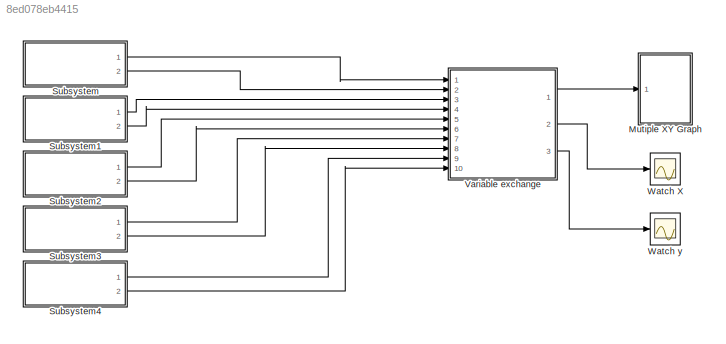
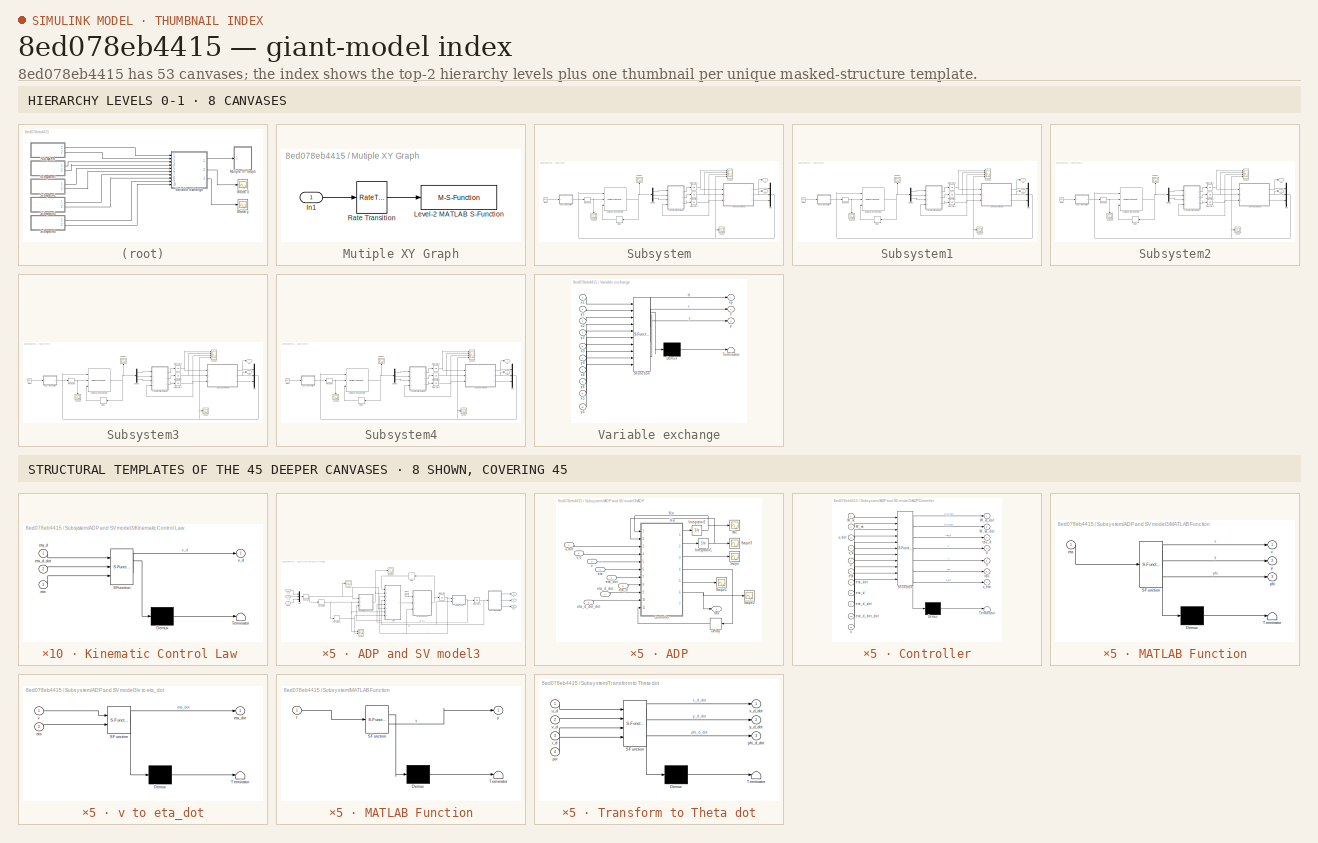
[diagram: thumbnail index - top-2 hierarchy levels (8 canvases) + 8 structural-template representatives of the remaining 45 canvases]
MODEL slx_8ed078eb4415
KIND model
CONFIG AbsTol = auto
CONFIG EnableMultiTasking = off
CONFIG FixedStep = auto
CONFIG MaxStep = auto
CONFIG MinStep = auto
CONFIG RelTol = 1e-3
CONFIG SampleTimeConstraint = Unconstrained
CONFIG SolverName = VariableStepAuto
CONFIG StartTime = 0.0
CONFIG StopTime = 100
BLOCK [SubSystem] Mutiple XY Graph
  Ports = [1]
  RequestExecContextInheritance = off
BLOCK [Inport] Mutiple XY Graph/In1
BLOCK [M-S-Function] Mutiple XY Graph/Level-2 MATLAB S-Function
  FunctionName = multiple_xy_graph
  Parameters = number_of_trajectories,axis_limits
  Ports = [1]
BLOCK [RateTransition] Mutiple XY Graph/Rate Transition
  OutPortSampleTime = sample_time
BLOCK [SubSystem] Subsystem
  Ports = [0, 2]
  RequestExecContextInheritance = off
BLOCK [SubSystem] Subsystem/ADP and SV model3
  Ports = [3, 3]
  RequestExecContextInheritance = off
BLOCK [SubSystem] Subsystem/ADP and SV model3/ADP
  Ports = [8, 1]
  RequestExecContextInheritance = off
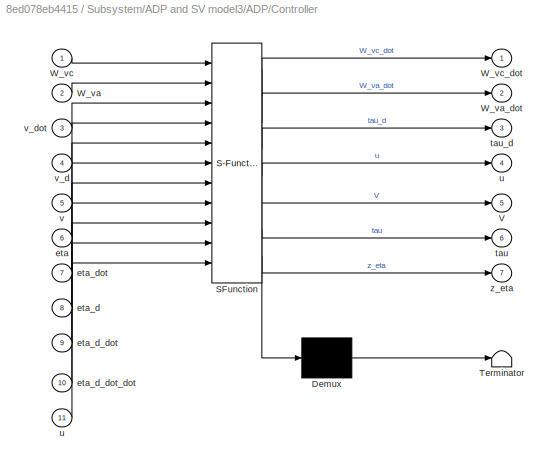
BLOCK [SubSystem] Subsystem/ADP and SV model3/ADP/Controller
  ErrorFcn = Stateflow.Translate.translate
  PermitHierarchicalResolution = ExplicitOnly
  Ports = [11, 7]
  RequestExecContextInheritance = off
  SFBlockType = MATLAB Function
  TreatAsAtomicUnit = on
BLOCK [Demux] Subsystem/ADP and SV model3/ADP/Controller/ Demux 
  Outputs = 1
  Ports = [1, 1]
BLOCK [S-Function] Subsystem/ADP and SV model3/ADP/Controller/ SFunction 
  EnableBusSupport = on
  FunctionName = sf_sfun
  PortCounts = [11 8]
  Ports = [11, 8]
  SFcnIsStateOwnerBlock = off
  SFunctionDeploymentMode = off
  Tag = Stateflow S-Function 92
BLOCK [Terminator] Subsystem/ADP and SV model3/ADP/Controller/ Terminator 
BLOCK [Outport] Subsystem/ADP and SV model3/ADP/Controller/V
  Port = 5
BLOCK [Inport] Subsystem/ADP and SV model3/ADP/Controller/W_va
  Port = 2
BLOCK [Outport] Subsystem/ADP and SV model3/ADP/Controller/W_va_dot
  Port = 2
BLOCK [Inport] Subsystem/ADP and SV model3/ADP/Controller/W_vc
BLOCK [Outport] Subsystem/ADP and SV model3/ADP/Controller/W_vc_dot
BLOCK [Inport] Subsystem/ADP and SV model3/ADP/Controller/eta
  Port = 6
BLOCK [Inport] Subsystem/ADP and SV model3/ADP/Controller/eta_d
  Port = 8
BLOCK [Inport] Subsystem/ADP and SV model3/ADP/Controller/eta_d_dot
  Port = 9
BLOCK [Inport] Subsystem/ADP and SV model3/ADP/Controller/eta_d_dot_dot
  Port = 10
BLOCK [Inport] Subsystem/ADP and SV model3/ADP/Controller/eta_dot
  Port = 7
BLOCK [Outport] Subsystem/ADP and SV model3/ADP/Controller/tau
  Port = 6
BLOCK [Outport] Subsystem/ADP and SV model3/ADP/Controller/tau_d
  Port = 3
BLOCK [Outport] Subsystem/ADP and SV model3/ADP/Controller/u
  Port = 4
BLOCK [Inport] Subsystem/ADP and SV model3/ADP/Controller/u 
  Port = 11
BLOCK [Inport] Subsystem/ADP and SV model3/ADP/Controller/v
  Port = 5
BLOCK [Inport] Subsystem/ADP and SV model3/ADP/Controller/v_d
  Port = 4
BLOCK [Inport] Subsystem/ADP and SV model3/ADP/Controller/v_dot
  Port = 3
BLOCK [Outport] Subsystem/ADP and SV model3/ADP/Controller/z_eta
  Port = 7
BLOCK [Delay] Subsystem/ADP and SV model3/ADP/Delay
  DelayLength = 1
  InitialCondition = [0;0;0]
  InputPortMap = u0
  Ports = [1, 1]
  SampleTime = 1e-2
BLOCK [Integrator] Subsystem/ADP and SV model3/ADP/Integrator1
  InitialCondition = zeros(12,1)+0.1
  Ports = [1, 1]
BLOCK [Integrator] Subsystem/ADP and SV model3/ADP/Integrator2
  InitialCondition = zeros(12,1)
  Ports = [1, 1]
BLOCK [Scope] Subsystem/ADP and SV model3/ADP/Scope
  Floating = off
  NumInputPorts = 1
  Ports = [1]
  ScopeSpecificationString = Simulink.scopes.TimeScopeBlockCfg('CurrentConfiguration', extmgr.ConfigurationSet(extmgr.Configuration('Core','General UI',true),extmgr.Configuration('Core','Source UI',true),extmgr.Configuration('Sources','WiredSimulink',true,'DataLoggingVariableName','ScopeData3'),extmgr.Configuration('Visuals','Time Domain',true,'SerializedDisplays',{struct('MinYLimReal','-1072044.93325','MaxYLimReal','602895.8...<+1488ch>  <repeated x5 — deduplicated; at blocks: Scope>
BLOCK [Scope] Subsystem/ADP and SV model3/ADP/Scope1
  Floating = off
  NumInputPorts = 1
  Ports = [1]
  ScopeSpecificationString = Simulink.scopes.TimeScopeBlockCfg('CurrentConfiguration', extmgr.ConfigurationSet(extmgr.Configuration('Core','General UI',true),extmgr.Configuration('Core','Source UI',true),extmgr.Configuration('Sources','WiredSimulink',true,'DataLoggingVariableName','ScopeData4'),extmgr.Configuration('Visuals','Time Domain',true,'SerializedDisplays',{struct('MinYLimReal','-0.03583','MaxYLimReal','0.01744','YLab...<+1396ch>  <repeated x5 — deduplicated; at blocks: Scope1>
BLOCK [Scope] Subsystem/ADP and SV model3/ADP/Scope2
  Floating = off
  NumInputPorts = 1
  Ports = [1]
  ScopeSpecificationString = Simulink.scopes.TimeScopeBlockCfg('CurrentConfiguration', extmgr.ConfigurationSet(extmgr.Configuration('Core','General UI',true),extmgr.Configuration('Core','Source UI',true),extmgr.Configuration('Sources','WiredSimulink',true,'DataLoggingVariableName','ScopeData5'),extmgr.Configuration('Visuals','Time Domain',true,'SerializedDisplays',{struct('MinYLimReal','-1072044.93471','MaxYLimReal','602895.8...<+1594ch>  <repeated x5 — deduplicated; at blocks: Scope2>
BLOCK [Scope] Subsystem/ADP and SV model3/ADP/Scope3
  Floating = off
  NumInputPorts = 1
  Ports = [1]
  ScopeSpecificationString = Simulink.scopes.TimeScopeBlockCfg('CurrentConfiguration', extmgr.ConfigurationSet(extmgr.Configuration('Core','General UI',true),extmgr.Configuration('Core','Source UI',true),extmgr.Configuration('Sources','WiredSimulink',true,'DataLoggingVariableName','ScopeData6'),extmgr.Configuration('Visuals','Time Domain',true,'SerializedDisplays',{struct('MinYLimReal','-1.83902','MaxYLimReal','0.71236','YLab...<+1539ch>  <repeated x5 — deduplicated; at blocks: Scope3>
BLOCK [Scope] Subsystem/ADP and SV model3/ADP/Wc
  Floating = off
  NumInputPorts = 1
  Ports = [1]
  ScopeSpecificationString = Simulink.scopes.TimeScopeBlockCfg('CurrentConfiguration', extmgr.ConfigurationSet(extmgr.Configuration('Core','General UI',true),extmgr.Configuration('Core','Source UI',true),extmgr.Configuration('Sources','WiredSimulink',true,'DataLoggingVariableName','ScopeData2'),extmgr.Configuration('Visuals','Time Domain',true,'SerializedDisplays',{struct('MinYLimReal','-1.93739','MaxYLimReal','0.90761','YLab...<+1493ch>  <repeated x5 — deduplicated; at blocks: Wc>
BLOCK [Inport] Subsystem/ADP and SV model3/ADP/eta
  Port = 4
BLOCK [Inport] Subsystem/ADP and SV model3/ADP/eta_d
  Port = 6
BLOCK [Inport] Subsystem/ADP and SV model3/ADP/eta_d_dot
  Port = 7
BLOCK [Inport] Subsystem/ADP and SV model3/ADP/eta_d_dot_dot
  Port = 8
BLOCK [Inport] Subsystem/ADP and SV model3/ADP/eta_dot
  Port = 5
BLOCK [Outport] Subsystem/ADP and SV model3/ADP/tau
BLOCK [Inport] Subsystem/ADP and SV model3/ADP/v
  Port = 3
BLOCK [Inport] Subsystem/ADP and SV model3/ADP/v_d
  Port = 2
BLOCK [Inport] Subsystem/ADP and SV model3/ADP/v_dot
BLOCK [Clock] Subsystem/ADP and SV model3/Clock
BLOCK [Delay] Subsystem/ADP and SV model3/Delay
  DelayLength = 1
  InitialCondition = [0;0;0]
  InputPortMap = u0
  Ports = [1, 1]
  SampleTime = 1e-2
BLOCK [Derivative] Subsystem/ADP and SV model3/Derivative
BLOCK [Derivative] Subsystem/ADP and SV model3/Derivative1
BLOCK [Integrator] Subsystem/ADP and SV model3/Integrator
  Ports = [1, 1]
BLOCK [Integrator] Subsystem/ADP and SV model3/Integrator1
  InitialCondition = [9;11;0.1]
  Ports = [1, 1]
BLOCK [SubSystem] Subsystem/ADP and SV model3/Kinematic Control Law 
  ErrorFcn = Stateflow.Translate.translate
  PermitHierarchicalResolution = ExplicitOnly
  Ports = [3, 1]
  RequestExecContextInheritance = off
  SFBlockType = MATLAB Function
  TreatAsAtomicUnit = on
BLOCK [Demux] Subsystem/ADP and SV model3/Kinematic Control Law / Demux 
  Outputs = 1
  Ports = [1, 1]
BLOCK [S-Function] Subsystem/ADP and SV model3/Kinematic Control Law / SFunction 
  EnableBusSupport = on
  FunctionName = sf_sfun
  PortCounts = [3 2]
  Ports = [3, 2]
  SFcnIsStateOwnerBlock = off
  SFunctionDeploymentMode = off
  Tag = Stateflow S-Function 93
BLOCK [Terminator] Subsystem/ADP and SV model3/Kinematic Control Law / Terminator 
BLOCK [Inport] Subsystem/ADP and SV model3/Kinematic Control Law /eta
  Port = 3
BLOCK [Inport] Subsystem/ADP and SV model3/Kinematic Control Law /eta_d
BLOCK [Inport] Subsystem/ADP and SV model3/Kinematic Control Law /eta_d_dot
  Port = 2
BLOCK [Outport] Subsystem/ADP and SV model3/Kinematic Control Law /v_d
BLOCK [SubSystem] Subsystem/ADP and SV model3/MATLAB Function
  ErrorFcn = Stateflow.Translate.translate
  PermitHierarchicalResolution = ExplicitOnly
  Ports = [1, 3]
  RequestExecContextInheritance = off
  SFBlockType = MATLAB Function
  TreatAsAtomicUnit = on
BLOCK [Demux] Subsystem/ADP and SV model3/MATLAB Function/ Demux 
  Outputs = 1
  Ports = [1, 1]
BLOCK [S-Function] Subsystem/ADP and SV model3/MATLAB Function/ SFunction 
  EnableBusSupport = on
  FunctionName = sf_sfun
  PortCounts = [1 4]
  Ports = [1, 4]
  SFcnIsStateOwnerBlock = off
  SFunctionDeploymentMode = off
  Tag = Stateflow S-Function 94
BLOCK [Terminator] Subsystem/ADP and SV model3/MATLAB Function/ Terminator 
BLOCK [Inport] Subsystem/ADP and SV model3/MATLAB Function/eta
BLOCK [Outport] Subsystem/ADP and SV model3/MATLAB Function/phi
  Port = 3
BLOCK [Outport] Subsystem/ADP and SV model3/MATLAB Function/x
BLOCK [Outport] Subsystem/ADP and SV model3/MATLAB Function/y
  Port = 2
BLOCK [Mux] Subsystem/ADP and SV model3/Mux
  DisplayOption = bar
  Inputs = 3
  Ports = [3, 1]
BLOCK [Outport] Subsystem/ADP and SV model3/PHI
  Port = 3
BLOCK [Reshape] Subsystem/ADP and SV model3/Reshape
  OutputDimensionality = Customize
  OutputDimensions = [3,1]
  Ports = [1, 1]
BLOCK [Scope] Subsystem/ADP and SV model3/Scope
  Floating = off
  NumInputPorts = 2
  Ports = [2]
  ScopeSpecificationString = Simulink.scopes.TimeScopeBlockCfg('CurrentConfiguration', extmgr.ConfigurationSet(extmgr.Configuration('Core','General UI',true),extmgr.Configuration('Core','Source UI',true),extmgr.Configuration('Sources','WiredSimulink',true,'DataLoggingVariableName','ScopeData4'),extmgr.Configuration('Visuals','Time Domain',true,'SerializedDisplays',{struct('MinYLimReal','-3.47815','MaxYLimReal','1.13537','YLab...<+1474ch>  <repeated x5 — deduplicated; at blocks: Scope>
BLOCK [Scope] Subsystem/ADP and SV model3/Scope1
  Floating = off
  NumInputPorts = 1
  Ports = [1]
  ScopeSpecificationString = Simulink.scopes.TimeScopeBlockCfg('CurrentConfiguration', extmgr.ConfigurationSet(extmgr.Configuration('Core','General UI',true),extmgr.Configuration('Core','Source UI',true),extmgr.Configuration('Sources','WiredSimulink',true,'DataLoggingVariableName','ScopeData5'),extmgr.Configuration('Visuals','Time Domain',true,'SerializedDisplays',{struct('MinYLimReal','-2.35107','MaxYLimReal','14.12379','YLa...<+1450ch>  <repeated x5 — deduplicated; at blocks: Scope1>
BLOCK [Scope] Subsystem/ADP and SV model3/Scope2
  Floating = off
  NumInputPorts = 1
  Ports = [1]
  ScopeSpecificationString = Simulink.scopes.TimeScopeBlockCfg('CurrentConfiguration', extmgr.ConfigurationSet(extmgr.Configuration('Core','General UI',true),extmgr.Configuration('Core','Source UI',true),extmgr.Configuration('Sources','WiredSimulink',true,'DataLoggingVariableName','ScopeData3'),extmgr.Configuration('Visuals','Time Domain',true,'SerializedDisplays',{struct('MinYLimReal','-34.12086','MaxYLimReal','15.50561','YL...<+1468ch>  <repeated x5 — deduplicated; at blocks: Scope2>
BLOCK [SubSystem] Subsystem/ADP and SV model3/Surface Vessel 
  ErrorFcn = Stateflow.Translate.translate
  PermitHierarchicalResolution = ExplicitOnly
  Ports = [3, 1]
  RequestExecContextInheritance = off
  SFBlockType = MATLAB Function
  TreatAsAtomicUnit = on
BLOCK [Demux] Subsystem/ADP and SV model3/Surface Vessel / Demux 
  Outputs = 1
  Ports = [1, 1]
BLOCK [S-Function] Subsystem/ADP and SV model3/Surface Vessel / SFunction 
  EnableBusSupport = on
  FunctionName = sf_sfun
  PortCounts = [3 2]
  Ports = [3, 2]
  SFcnIsStateOwnerBlock = off
  SFunctionDeploymentMode = off
  Tag = Stateflow S-Function 95
BLOCK [Terminator] Subsystem/ADP and SV model3/Surface Vessel / Terminator 
BLOCK [Inport] Subsystem/ADP and SV model3/Surface Vessel /t
BLOCK [Inport] Subsystem/ADP and SV model3/Surface Vessel /tau
  Port = 2
BLOCK [Inport] Subsystem/ADP and SV model3/Surface Vessel /v
  Port = 3
BLOCK [Outport] Subsystem/ADP and SV model3/Surface Vessel /v_dot
BLOCK [Inport] Subsystem/ADP and SV model3/phi_d
  Port = 3
BLOCK [SubSystem] Subsystem/ADP and SV model3/v to eta_dot
  ErrorFcn = Stateflow.Translate.translate
  PermitHierarchicalResolution = ExplicitOnly
  Ports = [2, 1]
  RequestExecContextInheritance = off
  SFBlockType = MATLAB Function
  TreatAsAtomicUnit = on
BLOCK [Demux] Subsystem/ADP and SV model3/v to eta_dot/ Demux 
  Outputs = 1
  Ports = [1, 1]
BLOCK [S-Function] Subsystem/ADP and SV model3/v to eta_dot/ SFunction 
  EnableBusSupport = on
  FunctionName = sf_sfun
  PortCounts = [2 2]
  Ports = [2, 2]
  SFcnIsStateOwnerBlock = off
  SFunctionDeploymentMode = off
  Tag = Stateflow S-Function 96
BLOCK [Terminator] Subsystem/ADP and SV model3/v to eta_dot/ Terminator 
BLOCK [Inport] Subsystem/ADP and SV model3/v to eta_dot/eta
  Port = 2
BLOCK [Outport] Subsystem/ADP and SV model3/v to eta_dot/eta_dot
BLOCK [Inport] Subsystem/ADP and SV model3/v to eta_dot/v
BLOCK [Outport] Subsystem/ADP and SV model3/x
BLOCK [Inport] Subsystem/ADP and SV model3/x_d
BLOCK [Outport] Subsystem/ADP and SV model3/y
  Port = 2
BLOCK [Inport] Subsystem/ADP and SV model3/y_d
  Port = 2
BLOCK [Clock] Subsystem/Clock
BLOCK [Delay] Subsystem/Delay
  DelayLength = 1
  InputPortMap = u0
  NameLocation = top
  Ports = [1, 1]
BLOCK [Demux] Subsystem/Demux
  Outputs = 3
  Ports = [1, 3]
BLOCK [Integrator] Subsystem/Integrator1
  InitialCondition = 10
  Ports = [1, 1]
BLOCK [Integrator] Subsystem/Integrator2
  InitialCondition = 10
  Ports = [1, 1]
BLOCK [Integrator] Subsystem/Integrator3
  Ports = [1, 1]
BLOCK [SubSystem] Subsystem/MATLAB Function
  ErrorFcn = Stateflow.Translate.translate
  PermitHierarchicalResolution = ExplicitOnly
  Ports = [1, 1]
  RequestExecContextInheritance = off
  SFBlockType = MATLAB Function
  TreatAsAtomicUnit = on
BLOCK [Demux] Subsystem/MATLAB Function/ Demux 
  Outputs = 1
  Ports = [1, 1]
BLOCK [S-Function] Subsystem/MATLAB Function/ SFunction 
  EnableBusSupport = on
  FunctionName = sf_sfun
  PortCounts = [1 2]
  Ports = [1, 2]
  SFcnIsStateOwnerBlock = off
  SFunctionDeploymentMode = off
  Tag = Stateflow S-Function 2
BLOCK [Terminator] Subsystem/MATLAB Function/ Terminator 
BLOCK [Inport] Subsystem/MATLAB Function/t
BLOCK [Outport] Subsystem/MATLAB Function/y
BLOCK [Mux] Subsystem/Mux
  DisplayOption = bar
  Inputs = 3
  Ports = [3, 1]
BLOCK [Reference] Subsystem/Nonlinear MPC Controller  REF=mpclib/Nonlinear MPC Controller  (lib defined in mdl_ae329e0e0455)
  Ports = [3, 1]
  SourceBlock = mpclib/Nonlinear MPC Controller
  SourceProductBaseCode = MP
  SourceType = NonlinearMPC
BLOCK [Reshape] Subsystem/Reshape
  OutputDimensionality = Customize
  OutputDimensions = [1,3]
  Ports = [1, 1]
BLOCK [Scope] Subsystem/Scope
  Floating = off
  NumInputPorts = 1
  Ports = [1]
  ScopeSpecificationString = Simulink.scopes.TimeScopeBlockCfg('CurrentConfiguration', extmgr.ConfigurationSet(extmgr.Configuration('Core','General UI',true),extmgr.Configuration('Core','Source UI',true),extmgr.Configuration('Sources','WiredSimulink',true,'DataLoggingVariableName','ScopeData1'),extmgr.Configuration('Visuals','Time Domain',true,'SerializedDisplays',{struct('MinYLimReal','-0.9319','MaxYLimReal','4.43693','YLabe...<+1422ch>  <repeated x5 — deduplicated; at blocks: Scope>
BLOCK [Scope] Subsystem/Scope1
  Floating = off
  NameLocation = right
  NumInputPorts = 1
  Ports = [1]
  ScopeSpecificationString = Simulink.scopes.TimeScopeBlockCfg('CurrentConfiguration', extmgr.ConfigurationSet(extmgr.Configuration('Core','General UI',true),extmgr.Configuration('Core','Source UI',true),extmgr.Configuration('Sources','WiredSimulink',true,'DataLoggingVariableName','ScopeData2'),extmgr.Configuration('Visuals','Time Domain',true,'SerializedDisplays',{struct('MinYLimReal','-5.2102','MaxYLimReal','19.15959','YLab...<+1612ch>  <repeated x5 — deduplicated; at blocks: Scope1>
BLOCK [Scope] Subsystem/Scope2
  Floating = off
  NumInputPorts = 4
  Ports = [4]
  ScopeSpecificationString = Simulink.scopes.TimeScopeBlockCfg('CurrentConfiguration', extmgr.ConfigurationSet(extmgr.Configuration('Core','General UI',true),extmgr.Configuration('Core','Source UI',true),extmgr.Configuration('Sources','WiredSimulink',true,'DataLoggingVariableName','ScopeData3'),extmgr.Configuration('Visuals','Time Domain',true,'SerializedDisplays',{struct('MinYLimReal','-4.79499','MaxYLimReal','41.13097','YLa...<+1662ch>
BLOCK [Scope] Subsystem/Scope5
  Floating = off
  NameLocation = left
  NumInputPorts = 1
  Ports = [1]
  ScopeSpecificationString = Simulink.scopes.TimeScopeBlockCfg('CurrentConfiguration', extmgr.ConfigurationSet(extmgr.Configuration('Core','General UI',true),extmgr.Configuration('Core','Source UI',true),extmgr.Configuration('Sources','WiredSimulink',true,'DataLoggingVariableName','ScopeData4'),extmgr.Configuration('Visuals','Time Domain',true,'SerializedDisplays',{struct('MinYLimReal','-4.65073','MaxYLimReal','41.85658','YLa...<+1625ch>
BLOCK [SubSystem] Subsystem/Transform to Theta dot
  ErrorFcn = Stateflow.Translate.translate
  PermitHierarchicalResolution = ExplicitOnly
  Ports = [4, 3]
  RequestExecContextInheritance = off
  SFBlockType = MATLAB Function
  TreatAsAtomicUnit = on
BLOCK [Demux] Subsystem/Transform to Theta dot/ Demux 
  Outputs = 1
  Ports = [1, 1]
BLOCK [S-Function] Subsystem/Transform to Theta dot/ SFunction 
  EnableBusSupport = on
  FunctionName = sf_sfun
  PortCounts = [4 4]
  Ports = [4, 4]
  SFcnIsStateOwnerBlock = off
  SFunctionDeploymentMode = off
  Tag = Stateflow S-Function 22
BLOCK [Terminator] Subsystem/Transform to Theta dot/ Terminator 
BLOCK [Outport] Subsystem/Transform to Theta dot/phi_d_dot
  Port = 3
BLOCK [Inport] Subsystem/Transform to Theta dot/psi
  Port = 4
BLOCK [Inport] Subsystem/Transform to Theta dot/r_d
  Port = 3
BLOCK [Inport] Subsystem/Transform to Theta dot/u_d
BLOCK [Inport] Subsystem/Transform to Theta dot/v_d
  Port = 2
BLOCK [Outport] Subsystem/Transform to Theta dot/x_d_dot
BLOCK [Outport] Subsystem/Transform to Theta dot/y_d_dot
  Port = 2
BLOCK [Outport] Subsystem/x1
BLOCK [Outport] Subsystem/y1
  Port = 2
BLOCK [SubSystem] Subsystem1
  Ports = [0, 2]
  RequestExecContextInheritance = off
BLOCK [SubSystem] Subsystem1/ADP and SV model3
  Ports = [3, 3]
  RequestExecContextInheritance = off
BLOCK [SubSystem] Subsystem1/ADP and SV model3/ADP
  Ports = [8, 1]
  RequestExecContextInheritance = off
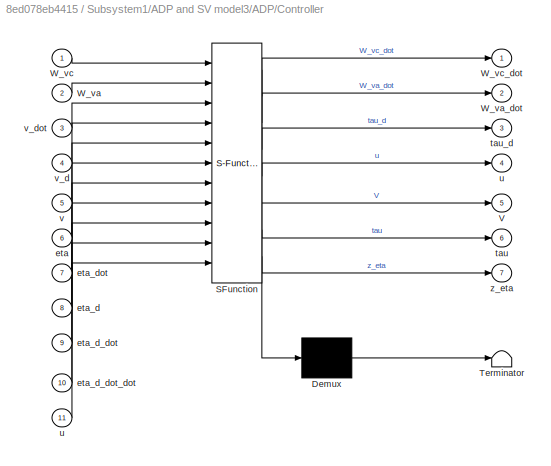
BLOCK [SubSystem] Subsystem1/ADP and SV model3/ADP/Controller
  ErrorFcn = Stateflow.Translate.translate
  PermitHierarchicalResolution = ExplicitOnly
  Ports = [11, 7]
  RequestExecContextInheritance = off
  SFBlockType = MATLAB Function
  TreatAsAtomicUnit = on
BLOCK [Demux] Subsystem1/ADP and SV model3/ADP/Controller/ Demux 
  Outputs = 1
  Ports = [1, 1]
BLOCK [S-Function] Subsystem1/ADP and SV model3/ADP/Controller/ SFunction 
  EnableBusSupport = on
  FunctionName = sf_sfun
  PortCounts = [11 8]
  Ports = [11, 8]
  SFcnIsStateOwnerBlock = off
  SFunctionDeploymentMode = off
  Tag = Stateflow S-Function 1
BLOCK [Terminator] Subsystem1/ADP and SV model3/ADP/Controller/ Terminator 
BLOCK [Outport] Subsystem1/ADP and SV model3/ADP/Controller/V
  Port = 5
BLOCK [Inport] Subsystem1/ADP and SV model3/ADP/Controller/W_va
  Port = 2
BLOCK [Outport] Subsystem1/ADP and SV model3/ADP/Controller/W_va_dot
  Port = 2
BLOCK [Inport] Subsystem1/ADP and SV model3/ADP/Controller/W_vc
BLOCK [Outport] Subsystem1/ADP and SV model3/ADP/Controller/W_vc_dot
BLOCK [Inport] Subsystem1/ADP and SV model3/ADP/Controller/eta
  Port = 6
BLOCK [Inport] Subsystem1/ADP and SV model3/ADP/Controller/eta_d
  Port = 8
BLOCK [Inport] Subsystem1/ADP and SV model3/ADP/Controller/eta_d_dot
  Port = 9
BLOCK [Inport] Subsystem1/ADP and SV model3/ADP/Controller/eta_d_dot_dot
  Port = 10
BLOCK [Inport] Subsystem1/ADP and SV model3/ADP/Controller/eta_dot
  Port = 7
BLOCK [Outport] Subsystem1/ADP and SV model3/ADP/Controller/tau
  Port = 6
BLOCK [Outport] Subsystem1/ADP and SV model3/ADP/Controller/tau_d
  Port = 3
BLOCK [Outport] Subsystem1/ADP and SV model3/ADP/Controller/u
  Port = 4
BLOCK [Inport] Subsystem1/ADP and SV model3/ADP/Controller/u 
  Port = 11
BLOCK [Inport] Subsystem1/ADP and SV model3/ADP/Controller/v
  Port = 5
BLOCK [Inport] Subsystem1/ADP and SV model3/ADP/Controller/v_d
  Port = 4
BLOCK [Inport] Subsystem1/ADP and SV model3/ADP/Controller/v_dot
  Port = 3
BLOCK [Outport] Subsystem1/ADP and SV model3/ADP/Controller/z_eta
  Port = 7
BLOCK [Delay] Subsystem1/ADP and SV model3/ADP/Delay
  DelayLength = 1
  InitialCondition = [0;0;0]
  InputPortMap = u0
  Ports = [1, 1]
  SampleTime = 1e-2
BLOCK [Integrator] Subsystem1/ADP and SV model3/ADP/Integrator1
  InitialCondition = zeros(12,1)+0.1
  Ports = [1, 1]
BLOCK [Integrator] Subsystem1/ADP and SV model3/ADP/Integrator2
  InitialCondition = zeros(12,1)
  Ports = [1, 1]
BLOCK [Scope] Subsystem1/ADP and SV model3/ADP/Scope
  Floating = off
  NumInputPorts = 1
  Ports = [1]
BLOCK [Scope] Subsystem1/ADP and SV model3/ADP/Scope1
  Floating = off
  NumInputPorts = 1
  Ports = [1]
BLOCK [Scope] Subsystem1/ADP and SV model3/ADP/Scope2
  Floating = off
  NumInputPorts = 1
  Ports = [1]
BLOCK [Scope] Subsystem1/ADP and SV model3/ADP/Scope3
  Floating = off
  NumInputPorts = 1
  Ports = [1]
BLOCK [Scope] Subsystem1/ADP and SV model3/ADP/Wc
  Floating = off
  NumInputPorts = 1
  Ports = [1]
BLOCK [Inport] Subsystem1/ADP and SV model3/ADP/eta
  Port = 4
BLOCK [Inport] Subsystem1/ADP and SV model3/ADP/eta_d
  Port = 6
BLOCK [Inport] Subsystem1/ADP and SV model3/ADP/eta_d_dot
  Port = 7
BLOCK [Inport] Subsystem1/ADP and SV model3/ADP/eta_d_dot_dot
  Port = 8
BLOCK [Inport] Subsystem1/ADP and SV model3/ADP/eta_dot
  Port = 5
BLOCK [Outport] Subsystem1/ADP and SV model3/ADP/tau
BLOCK [Inport] Subsystem1/ADP and SV model3/ADP/v
  Port = 3
BLOCK [Inport] Subsystem1/ADP and SV model3/ADP/v_d
  Port = 2
BLOCK [Inport] Subsystem1/ADP and SV model3/ADP/v_dot
BLOCK [Clock] Subsystem1/ADP and SV model3/Clock
BLOCK [Delay] Subsystem1/ADP and SV model3/Delay
  DelayLength = 1
  InitialCondition = [0;0;0]
  InputPortMap = u0
  Ports = [1, 1]
  SampleTime = 1e-2
BLOCK [Derivative] Subsystem1/ADP and SV model3/Derivative
BLOCK [Derivative] Subsystem1/ADP and SV model3/Derivative1
BLOCK [Integrator] Subsystem1/ADP and SV model3/Integrator
  Ports = [1, 1]
BLOCK [Integrator] Subsystem1/ADP and SV model3/Integrator1
  InitialCondition = [14;11;0.1]
  Ports = [1, 1]
BLOCK [SubSystem] Subsystem1/ADP and SV model3/Kinematic Control Law 
  ErrorFcn = Stateflow.Translate.translate
  PermitHierarchicalResolution = ExplicitOnly
  Ports = [3, 1]
  RequestExecContextInheritance = off
  SFBlockType = MATLAB Function
  TreatAsAtomicUnit = on
BLOCK [Demux] Subsystem1/ADP and SV model3/Kinematic Control Law / Demux 
  Outputs = 1
  Ports = [1, 1]
BLOCK [S-Function] Subsystem1/ADP and SV model3/Kinematic Control Law / SFunction 
  EnableBusSupport = on
  FunctionName = sf_sfun
  PortCounts = [3 2]
  Ports = [3, 2]
  SFcnIsStateOwnerBlock = off
  SFunctionDeploymentMode = off
  Tag = Stateflow S-Function 3
BLOCK [Terminator] Subsystem1/ADP and SV model3/Kinematic Control Law / Terminator 
BLOCK [Inport] Subsystem1/ADP and SV model3/Kinematic Control Law /eta
  Port = 3
BLOCK [Inport] Subsystem1/ADP and SV model3/Kinematic Control Law /eta_d
BLOCK [Inport] Subsystem1/ADP and SV model3/Kinematic Control Law /eta_d_dot
  Port = 2
BLOCK [Outport] Subsystem1/ADP and SV model3/Kinematic Control Law /v_d
BLOCK [SubSystem] Subsystem1/ADP and SV model3/MATLAB Function
  ErrorFcn = Stateflow.Translate.translate
  PermitHierarchicalResolution = ExplicitOnly
  Ports = [1, 3]
  RequestExecContextInheritance = off
  SFBlockType = MATLAB Function
  TreatAsAtomicUnit = on
BLOCK [Demux] Subsystem1/ADP and SV model3/MATLAB Function/ Demux 
  Outputs = 1
  Ports = [1, 1]
BLOCK [S-Function] Subsystem1/ADP and SV model3/MATLAB Function/ SFunction 
  EnableBusSupport = on
  FunctionName = sf_sfun
  PortCounts = [1 4]
  Ports = [1, 4]
  SFcnIsStateOwnerBlock = off
  SFunctionDeploymentMode = off
  Tag = Stateflow S-Function 4
BLOCK [Terminator] Subsystem1/ADP and SV model3/MATLAB Function/ Terminator 
BLOCK [Inport] Subsystem1/ADP and SV model3/MATLAB Function/eta
BLOCK [Outport] Subsystem1/ADP and SV model3/MATLAB Function/phi
  Port = 3
BLOCK [Outport] Subsystem1/ADP and SV model3/MATLAB Function/x
BLOCK [Outport] Subsystem1/ADP and SV model3/MATLAB Function/y
  Port = 2
BLOCK [Mux] Subsystem1/ADP and SV model3/Mux
  DisplayOption = bar
  Inputs = 3
  Ports = [3, 1]
BLOCK [Outport] Subsystem1/ADP and SV model3/PHI
  Port = 3
BLOCK [Reshape] Subsystem1/ADP and SV model3/Reshape
  OutputDimensionality = Customize
  OutputDimensions = [3,1]
  Ports = [1, 1]
BLOCK [Scope] Subsystem1/ADP and SV model3/Scope
  Floating = off
  NumInputPorts = 2
  Ports = [2]
BLOCK [Scope] Subsystem1/ADP and SV model3/Scope1
  Floating = off
  NumInputPorts = 1
  Ports = [1]
BLOCK [Scope] Subsystem1/ADP and SV model3/Scope2
  Floating = off
  NumInputPorts = 1
  Ports = [1]
BLOCK [SubSystem] Subsystem1/ADP and SV model3/Surface Vessel 
  ErrorFcn = Stateflow.Translate.translate
  PermitHierarchicalResolution = ExplicitOnly
  Ports = [3, 1]
  RequestExecContextInheritance = off
  SFBlockType = MATLAB Function
  TreatAsAtomicUnit = on
BLOCK [Demux] Subsystem1/ADP and SV model3/Surface Vessel / Demux 
  Outputs = 1
  Ports = [1, 1]
BLOCK [S-Function] Subsystem1/ADP and SV model3/Surface Vessel / SFunction 
  EnableBusSupport = on
  FunctionName = sf_sfun
  PortCounts = [3 2]
  Ports = [3, 2]
  SFcnIsStateOwnerBlock = off
  SFunctionDeploymentMode = off
  Tag = Stateflow S-Function 5
BLOCK [Terminator] Subsystem1/ADP and SV model3/Surface Vessel / Terminator 
BLOCK [Inport] Subsystem1/ADP and SV model3/Surface Vessel /t
BLOCK [Inport] Subsystem1/ADP and SV model3/Surface Vessel /tau
  Port = 2
BLOCK [Inport] Subsystem1/ADP and SV model3/Surface Vessel /v
  Port = 3
BLOCK [Outport] Subsystem1/ADP and SV model3/Surface Vessel /v_dot
BLOCK [Inport] Subsystem1/ADP and SV model3/phi_d
  Port = 3
BLOCK [SubSystem] Subsystem1/ADP and SV model3/v to eta_dot
  ErrorFcn = Stateflow.Translate.translate
  PermitHierarchicalResolution = ExplicitOnly
  Ports = [2, 1]
  RequestExecContextInheritance = off
  SFBlockType = MATLAB Function
  TreatAsAtomicUnit = on
BLOCK [Demux] Subsystem1/ADP and SV model3/v to eta_dot/ Demux 
  Outputs = 1
  Ports = [1, 1]
BLOCK [S-Function] Subsystem1/ADP and SV model3/v to eta_dot/ SFunction 
  EnableBusSupport = on
  FunctionName = sf_sfun
  PortCounts = [2 2]
  Ports = [2, 2]
  SFcnIsStateOwnerBlock = off
  SFunctionDeploymentMode = off
  Tag = Stateflow S-Function 6
BLOCK [Terminator] Subsystem1/ADP and SV model3/v to eta_dot/ Terminator 
BLOCK [Inport] Subsystem1/ADP and SV model3/v to eta_dot/eta
  Port = 2
BLOCK [Outport] Subsystem1/ADP and SV model3/v to eta_dot/eta_dot
BLOCK [Inport] Subsystem1/ADP and SV model3/v to eta_dot/v
BLOCK [Outport] Subsystem1/ADP and SV model3/x
BLOCK [Inport] Subsystem1/ADP and SV model3/x_d
BLOCK [Outport] Subsystem1/ADP and SV model3/y
  Port = 2
BLOCK [Inport] Subsystem1/ADP and SV model3/y_d
  Port = 2
BLOCK [Clock] Subsystem1/Clock
BLOCK [Delay] Subsystem1/Delay
  DelayLength = 1
  InputPortMap = u0
  NameLocation = top
  Ports = [1, 1]
BLOCK [Demux] Subsystem1/Demux
  Outputs = 3
  Ports = [1, 3]
BLOCK [Integrator] Subsystem1/Integrator1
  InitialCondition = 15
  Ports = [1, 1]
BLOCK [Integrator] Subsystem1/Integrator2
  InitialCondition = 10
  Ports = [1, 1]
BLOCK [Integrator] Subsystem1/Integrator3
  Ports = [1, 1]
BLOCK [SubSystem] Subsystem1/MATLAB Function
  ErrorFcn = Stateflow.Translate.translate
  PermitHierarchicalResolution = ExplicitOnly
  Ports = [1, 1]
  RequestExecContextInheritance = off
  SFBlockType = MATLAB Function
  TreatAsAtomicUnit = on
BLOCK [Demux] Subsystem1/MATLAB Function/ Demux 
  Outputs = 1
  Ports = [1, 1]
BLOCK [S-Function] Subsystem1/MATLAB Function/ SFunction 
  EnableBusSupport = on
  FunctionName = sf_sfun
  PortCounts = [1 2]
  Ports = [1, 2]
  SFcnIsStateOwnerBlock = off
  SFunctionDeploymentMode = off
  Tag = Stateflow S-Function 7
BLOCK [Terminator] Subsystem1/MATLAB Function/ Terminator 
BLOCK [Inport] Subsystem1/MATLAB Function/t
BLOCK [Outport] Subsystem1/MATLAB Function/y
BLOCK [Mux] Subsystem1/Mux
  DisplayOption = bar
  Inputs = 3
  Ports = [3, 1]
BLOCK [Reference] Subsystem1/Nonlinear MPC Controller  REF=mpclib/Nonlinear MPC Controller  (lib defined in mdl_ae329e0e0455)
  Ports = [3, 1]
  SourceBlock = mpclib/Nonlinear MPC Controller
  SourceProductBaseCode = MP
  SourceType = NonlinearMPC
BLOCK [Reshape] Subsystem1/Reshape
  OutputDimensionality = Customize
  OutputDimensions = [1,3]
  Ports = [1, 1]
BLOCK [Scope] Subsystem1/Scope
  Floating = off
  NumInputPorts = 1
  Ports = [1]
BLOCK [Scope] Subsystem1/Scope1
  Floating = off
  NameLocation = right
  NumInputPorts = 1
  Ports = [1]
BLOCK [Scope] Subsystem1/Scope2
  Floating = off
  NumInputPorts = 4
  Ports = [4]
  ScopeSpecificationString = Simulink.scopes.TimeScopeBlockCfg('CurrentConfiguration', extmgr.ConfigurationSet(extmgr.Configuration('Core','General UI',true),extmgr.Configuration('Core','Source UI',true),extmgr.Configuration('Sources','WiredSimulink',true,'DataLoggingVariableName','ScopeData3'),extmgr.Configuration('Visuals','Time Domain',true,'SerializedDisplays',{struct('MinYLimReal','-5.41998','MaxYLimReal','46.75597','YLa...<+1659ch>
BLOCK [Scope] Subsystem1/Scope5
  Floating = off
  NameLocation = left
  NumInputPorts = 1
  Ports = [1]
  ScopeSpecificationString = Simulink.scopes.TimeScopeBlockCfg('CurrentConfiguration', extmgr.ConfigurationSet(extmgr.Configuration('Core','General UI',true),extmgr.Configuration('Core','Source UI',true),extmgr.Configuration('Sources','WiredSimulink',true,'DataLoggingVariableName','ScopeData4'),extmgr.Configuration('Visuals','Time Domain',true,'SerializedDisplays',{struct('MinYLimReal','-3.40073','MaxYLimReal','30.60658','YLa...<+1625ch>  <repeated x4 — deduplicated; at blocks: Scope5>
BLOCK [SubSystem] Subsystem1/Transform to Theta dot
  ErrorFcn = Stateflow.Translate.translate
  PermitHierarchicalResolution = ExplicitOnly
  Ports = [4, 3]
  RequestExecContextInheritance = off
  SFBlockType = MATLAB Function
  TreatAsAtomicUnit = on
BLOCK [Demux] Subsystem1/Transform to Theta dot/ Demux 
  Outputs = 1
  Ports = [1, 1]
BLOCK [S-Function] Subsystem1/Transform to Theta dot/ SFunction 
  EnableBusSupport = on
  FunctionName = sf_sfun
  PortCounts = [4 4]
  Ports = [4, 4]
  SFcnIsStateOwnerBlock = off
  SFunctionDeploymentMode = off
  Tag = Stateflow S-Function 8
BLOCK [Terminator] Subsystem1/Transform to Theta dot/ Terminator 
BLOCK [Outport] Subsystem1/Transform to Theta dot/phi_d_dot
  Port = 3
BLOCK [Inport] Subsystem1/Transform to Theta dot/psi
  Port = 4
BLOCK [Inport] Subsystem1/Transform to Theta dot/r_d
  Port = 3
BLOCK [Inport] Subsystem1/Transform to Theta dot/u_d
BLOCK [Inport] Subsystem1/Transform to Theta dot/v_d
  Port = 2
BLOCK [Outport] Subsystem1/Transform to Theta dot/x_d_dot
BLOCK [Outport] Subsystem1/Transform to Theta dot/y_d_dot
  Port = 2
BLOCK [Outport] Subsystem1/x2
BLOCK [Outport] Subsystem1/y2
  Port = 2
BLOCK [SubSystem] Subsystem2
  Ports = [0, 2]
  RequestExecContextInheritance = off
BLOCK [SubSystem] Subsystem2/ADP and SV model3
  Ports = [3, 3]
  RequestExecContextInheritance = off
BLOCK [SubSystem] Subsystem2/ADP and SV model3/ADP
  Ports = [8, 1]
  RequestExecContextInheritance = off
BLOCK [SubSystem] Subsystem2/ADP and SV model3/ADP/Controller
  ErrorFcn = Stateflow.Translate.translate
  PermitHierarchicalResolution = ExplicitOnly
  Ports = [11, 7]
  RequestExecContextInheritance = off
  SFBlockType = MATLAB Function
  TreatAsAtomicUnit = on
BLOCK [Demux] Subsystem2/ADP and SV model3/ADP/Controller/ Demux 
  Outputs = 1
  Ports = [1, 1]
BLOCK [S-Function] Subsystem2/ADP and SV model3/ADP/Controller/ SFunction 
  EnableBusSupport = on
  FunctionName = sf_sfun
  PortCounts = [11 8]
  Ports = [11, 8]
  SFcnIsStateOwnerBlock = off
  SFunctionDeploymentMode = off
  Tag = Stateflow S-Function 9
BLOCK [Terminator] Subsystem2/ADP and SV model3/ADP/Controller/ Terminator 
BLOCK [Outport] Subsystem2/ADP and SV model3/ADP/Controller/V
  Port = 5
BLOCK [Inport] Subsystem2/ADP and SV model3/ADP/Controller/W_va
  Port = 2
BLOCK [Outport] Subsystem2/ADP and SV model3/ADP/Controller/W_va_dot
  Port = 2
BLOCK [Inport] Subsystem2/ADP and SV model3/ADP/Controller/W_vc
BLOCK [Outport] Subsystem2/ADP and SV model3/ADP/Controller/W_vc_dot
BLOCK [Inport] Subsystem2/ADP and SV model3/ADP/Controller/eta
  Port = 6
BLOCK [Inport] Subsystem2/ADP and SV model3/ADP/Controller/eta_d
  Port = 8
BLOCK [Inport] Subsystem2/ADP and SV model3/ADP/Controller/eta_d_dot
  Port = 9
BLOCK [Inport] Subsystem2/ADP and SV model3/ADP/Controller/eta_d_dot_dot
  Port = 10
BLOCK [Inport] Subsystem2/ADP and SV model3/ADP/Controller/eta_dot
  Port = 7
BLOCK [Outport] Subsystem2/ADP and SV model3/ADP/Controller/tau
  Port = 6
BLOCK [Outport] Subsystem2/ADP and SV model3/ADP/Controller/tau_d
  Port = 3
BLOCK [Outport] Subsystem2/ADP and SV model3/ADP/Controller/u
  Port = 4
BLOCK [Inport] Subsystem2/ADP and SV model3/ADP/Controller/u 
  Port = 11
BLOCK [Inport] Subsystem2/ADP and SV model3/ADP/Controller/v
  Port = 5
BLOCK [Inport] Subsystem2/ADP and SV model3/ADP/Controller/v_d
  Port = 4
BLOCK [Inport] Subsystem2/ADP and SV model3/ADP/Controller/v_dot
  Port = 3
BLOCK [Outport] Subsystem2/ADP and SV model3/ADP/Controller/z_eta
  Port = 7
BLOCK [Delay] Subsystem2/ADP and SV model3/ADP/Delay
  DelayLength = 1
  InitialCondition = [0;0;0]
  InputPortMap = u0
  Ports = [1, 1]
  SampleTime = 1e-2
BLOCK [Integrator] Subsystem2/ADP and SV model3/ADP/Integrator1
  InitialCondition = zeros(12,1)+0.1
  Ports = [1, 1]
BLOCK [Integrator] Subsystem2/ADP and SV model3/ADP/Integrator2
  InitialCondition = zeros(12,1)
  Ports = [1, 1]
BLOCK [Scope] Subsystem2/ADP and SV model3/ADP/Scope
  Floating = off
  NumInputPorts = 1
  Ports = [1]
BLOCK [Scope] Subsystem2/ADP and SV model3/ADP/Scope1
  Floating = off
  NumInputPorts = 1
  Ports = [1]
BLOCK [Scope] Subsystem2/ADP and SV model3/ADP/Scope2
  Floating = off
  NumInputPorts = 1
  Ports = [1]
BLOCK [Scope] Subsystem2/ADP and SV model3/ADP/Scope3
  Floating = off
  NumInputPorts = 1
  Ports = [1]
BLOCK [Scope] Subsystem2/ADP and SV model3/ADP/Wc
  Floating = off
  NumInputPorts = 1
  Ports = [1]
BLOCK [Inport] Subsystem2/ADP and SV model3/ADP/eta
  Port = 4
BLOCK [Inport] Subsystem2/ADP and SV model3/ADP/eta_d
  Port = 6
BLOCK [Inport] Subsystem2/ADP and SV model3/ADP/eta_d_dot
  Port = 7
BLOCK [Inport] Subsystem2/ADP and SV model3/ADP/eta_d_dot_dot
  Port = 8
BLOCK [Inport] Subsystem2/ADP and SV model3/ADP/eta_dot
  Port = 5
BLOCK [Outport] Subsystem2/ADP and SV model3/ADP/tau
BLOCK [Inport] Subsystem2/ADP and SV model3/ADP/v
  Port = 3
BLOCK [Inport] Subsystem2/ADP and SV model3/ADP/v_d
  Port = 2
BLOCK [Inport] Subsystem2/ADP and SV model3/ADP/v_dot
BLOCK [Clock] Subsystem2/ADP and SV model3/Clock
BLOCK [Delay] Subsystem2/ADP and SV model3/Delay
  DelayLength = 1
  InitialCondition = [0;0;0]
  InputPortMap = u0
  Ports = [1, 1]
  SampleTime = 1e-2
BLOCK [Derivative] Subsystem2/ADP and SV model3/Derivative
BLOCK [Derivative] Subsystem2/ADP and SV model3/Derivative1
BLOCK [Integrator] Subsystem2/ADP and SV model3/Integrator
  Ports = [1, 1]
BLOCK [Integrator] Subsystem2/ADP and SV model3/Integrator1
  InitialCondition = [9;5;-0.1]
  Ports = [1, 1]
BLOCK [SubSystem] Subsystem2/ADP and SV model3/Kinematic Control Law 
  ErrorFcn = Stateflow.Translate.translate
  PermitHierarchicalResolution = ExplicitOnly
  Ports = [3, 1]
  RequestExecContextInheritance = off
  SFBlockType = MATLAB Function
  TreatAsAtomicUnit = on
BLOCK [Demux] Subsystem2/ADP and SV model3/Kinematic Control Law / Demux 
  Outputs = 1
  Ports = [1, 1]
BLOCK [S-Function] Subsystem2/ADP and SV model3/Kinematic Control Law / SFunction 
  EnableBusSupport = on
  FunctionName = sf_sfun
  PortCounts = [3 2]
  Ports = [3, 2]
  SFcnIsStateOwnerBlock = off
  SFunctionDeploymentMode = off
  Tag = Stateflow S-Function 10
BLOCK [Terminator] Subsystem2/ADP and SV model3/Kinematic Control Law / Terminator 
BLOCK [Inport] Subsystem2/ADP and SV model3/Kinematic Control Law /eta
  Port = 3
BLOCK [Inport] Subsystem2/ADP and SV model3/Kinematic Control Law /eta_d
BLOCK [Inport] Subsystem2/ADP and SV model3/Kinematic Control Law /eta_d_dot
  Port = 2
BLOCK [Outport] Subsystem2/ADP and SV model3/Kinematic Control Law /v_d
BLOCK [SubSystem] Subsystem2/ADP and SV model3/MATLAB Function
  ErrorFcn = Stateflow.Translate.translate
  PermitHierarchicalResolution = ExplicitOnly
  Ports = [1, 3]
  RequestExecContextInheritance = off
  SFBlockType = MATLAB Function
  TreatAsAtomicUnit = on
BLOCK [Demux] Subsystem2/ADP and SV model3/MATLAB Function/ Demux 
  Outputs = 1
  Ports = [1, 1]
BLOCK [S-Function] Subsystem2/ADP and SV model3/MATLAB Function/ SFunction 
  EnableBusSupport = on
  FunctionName = sf_sfun
  PortCounts = [1 4]
  Ports = [1, 4]
  SFcnIsStateOwnerBlock = off
  SFunctionDeploymentMode = off
  Tag = Stateflow S-Function 11
BLOCK [Terminator] Subsystem2/ADP and SV model3/MATLAB Function/ Terminator 
BLOCK [Inport] Subsystem2/ADP and SV model3/MATLAB Function/eta
BLOCK [Outport] Subsystem2/ADP and SV model3/MATLAB Function/phi
  Port = 3
BLOCK [Outport] Subsystem2/ADP and SV model3/MATLAB Function/x
BLOCK [Outport] Subsystem2/ADP and SV model3/MATLAB Function/y
  Port = 2
BLOCK [Mux] Subsystem2/ADP and SV model3/Mux
  DisplayOption = bar
  Inputs = 3
  Ports = [3, 1]
BLOCK [Outport] Subsystem2/ADP and SV model3/PHI
  Port = 3
BLOCK [Reshape] Subsystem2/ADP and SV model3/Reshape
  OutputDimensionality = Customize
  OutputDimensions = [3,1]
  Ports = [1, 1]
BLOCK [Scope] Subsystem2/ADP and SV model3/Scope
  Floating = off
  NumInputPorts = 2
  Ports = [2]
BLOCK [Scope] Subsystem2/ADP and SV model3/Scope1
  Floating = off
  NumInputPorts = 1
  Ports = [1]
BLOCK [Scope] Subsystem2/ADP and SV model3/Scope2
  Floating = off
  NumInputPorts = 1
  Ports = [1]
BLOCK [SubSystem] Subsystem2/ADP and SV model3/Surface Vessel 
  ErrorFcn = Stateflow.Translate.translate
  PermitHierarchicalResolution = ExplicitOnly
  Ports = [3, 1]
  RequestExecContextInheritance = off
  SFBlockType = MATLAB Function
  TreatAsAtomicUnit = on
BLOCK [Demux] Subsystem2/ADP and SV model3/Surface Vessel / Demux 
  Outputs = 1
  Ports = [1, 1]
BLOCK [S-Function] Subsystem2/ADP and SV model3/Surface Vessel / SFunction 
  EnableBusSupport = on
  FunctionName = sf_sfun
  PortCounts = [3 2]
  Ports = [3, 2]
  SFcnIsStateOwnerBlock = off
  SFunctionDeploymentMode = off
  Tag = Stateflow S-Function 12
BLOCK [Terminator] Subsystem2/ADP and SV model3/Surface Vessel / Terminator 
BLOCK [Inport] Subsystem2/ADP and SV model3/Surface Vessel /t
BLOCK [Inport] Subsystem2/ADP and SV model3/Surface Vessel /tau
  Port = 2
BLOCK [Inport] Subsystem2/ADP and SV model3/Surface Vessel /v
  Port = 3
BLOCK [Outport] Subsystem2/ADP and SV model3/Surface Vessel /v_dot
BLOCK [Inport] Subsystem2/ADP and SV model3/phi_d
  Port = 3
BLOCK [SubSystem] Subsystem2/ADP and SV model3/v to eta_dot
  ErrorFcn = Stateflow.Translate.translate
  PermitHierarchicalResolution = ExplicitOnly
  Ports = [2, 1]
  RequestExecContextInheritance = off
  SFBlockType = MATLAB Function
  TreatAsAtomicUnit = on
BLOCK [Demux] Subsystem2/ADP and SV model3/v to eta_dot/ Demux 
  Outputs = 1
  Ports = [1, 1]
BLOCK [S-Function] Subsystem2/ADP and SV model3/v to eta_dot/ SFunction 
  EnableBusSupport = on
  FunctionName = sf_sfun
  PortCounts = [2 2]
  Ports = [2, 2]
  SFcnIsStateOwnerBlock = off
  SFunctionDeploymentMode = off
  Tag = Stateflow S-Function 13
BLOCK [Terminator] Subsystem2/ADP and SV model3/v to eta_dot/ Terminator 
BLOCK [Inport] Subsystem2/ADP and SV model3/v to eta_dot/eta
  Port = 2
BLOCK [Outport] Subsystem2/ADP and SV model3/v to eta_dot/eta_dot
BLOCK [Inport] Subsystem2/ADP and SV model3/v to eta_dot/v
BLOCK [Outport] Subsystem2/ADP and SV model3/x
BLOCK [Inport] Subsystem2/ADP and SV model3/x_d
BLOCK [Outport] Subsystem2/ADP and SV model3/y
  Port = 2
BLOCK [Inport] Subsystem2/ADP and SV model3/y_d
  Port = 2
BLOCK [Clock] Subsystem2/Clock
BLOCK [Delay] Subsystem2/Delay
  DelayLength = 1
  InputPortMap = u0
  NameLocation = top
  Ports = [1, 1]
BLOCK [Demux] Subsystem2/Demux
  Outputs = 3
  Ports = [1, 3]
BLOCK [Integrator] Subsystem2/Integrator1
  InitialCondition = 10
  Ports = [1, 1]
BLOCK [Integrator] Subsystem2/Integrator2
  InitialCondition = 5
  Ports = [1, 1]
BLOCK [Integrator] Subsystem2/Integrator3
  Ports = [1, 1]
BLOCK [SubSystem] Subsystem2/MATLAB Function
  ErrorFcn = Stateflow.Translate.translate
  PermitHierarchicalResolution = ExplicitOnly
  Ports = [1, 1]
  RequestExecContextInheritance = off
  SFBlockType = MATLAB Function
  TreatAsAtomicUnit = on
BLOCK [Demux] Subsystem2/MATLAB Function/ Demux 
  Outputs = 1
  Ports = [1, 1]
BLOCK [S-Function] Subsystem2/MATLAB Function/ SFunction 
  EnableBusSupport = on
  FunctionName = sf_sfun
  PortCounts = [1 2]
  Ports = [1, 2]
  SFcnIsStateOwnerBlock = off
  SFunctionDeploymentMode = off
  Tag = Stateflow S-Function 14
BLOCK [Terminator] Subsystem2/MATLAB Function/ Terminator 
BLOCK [Inport] Subsystem2/MATLAB Function/t
BLOCK [Outport] Subsystem2/MATLAB Function/y
BLOCK [Mux] Subsystem2/Mux
  DisplayOption = bar
  Inputs = 3
  Ports = [3, 1]
BLOCK [Reference] Subsystem2/Nonlinear MPC Controller  REF=mpclib/Nonlinear MPC Controller  (lib defined in mdl_ae329e0e0455)
  Ports = [3, 1]
  SourceBlock = mpclib/Nonlinear MPC Controller
  SourceProductBaseCode = MP
  SourceType = NonlinearMPC
BLOCK [Reshape] Subsystem2/Reshape
  OutputDimensionality = Customize
  OutputDimensions = [1,3]
  Ports = [1, 1]
BLOCK [Scope] Subsystem2/Scope
  Floating = off
  NumInputPorts = 1
  Ports = [1]
BLOCK [Scope] Subsystem2/Scope1
  Floating = off
  NameLocation = right
  NumInputPorts = 1
  Ports = [1]
BLOCK [Scope] Subsystem2/Scope2
  Floating = off
  NumInputPorts = 4
  Ports = [4]
  ScopeSpecificationString = Simulink.scopes.TimeScopeBlockCfg('CurrentConfiguration', extmgr.ConfigurationSet(extmgr.Configuration('Core','General UI',true),extmgr.Configuration('Core','Source UI',true),extmgr.Configuration('Sources','WiredSimulink',true,'DataLoggingVariableName','ScopeData3'),extmgr.Configuration('Visuals','Time Domain',true,'SerializedDisplays',{struct('MinYLimReal','-7.2274','MaxYLimReal','41.40124','YLab...<+1657ch>
BLOCK [Scope] Subsystem2/Scope5
  Floating = off
  NameLocation = left
  NumInputPorts = 1
  Ports = [1]
BLOCK [SubSystem] Subsystem2/Transform to Theta dot
  ErrorFcn = Stateflow.Translate.translate
  PermitHierarchicalResolution = ExplicitOnly
  Ports = [4, 3]
  RequestExecContextInheritance = off
  SFBlockType = MATLAB Function
  TreatAsAtomicUnit = on
BLOCK [Demux] Subsystem2/Transform to Theta dot/ Demux 
  Outputs = 1
  Ports = [1, 1]
BLOCK [S-Function] Subsystem2/Transform to Theta dot/ SFunction 
  EnableBusSupport = on
  FunctionName = sf_sfun
  PortCounts = [4 4]
  Ports = [4, 4]
  SFcnIsStateOwnerBlock = off
  SFunctionDeploymentMode = off
  Tag = Stateflow S-Function 15
BLOCK [Terminator] Subsystem2/Transform to Theta dot/ Terminator 
BLOCK [Outport] Subsystem2/Transform to Theta dot/phi_d_dot
  Port = 3
BLOCK [Inport] Subsystem2/Transform to Theta dot/psi
  Port = 4
BLOCK [Inport] Subsystem2/Transform to Theta dot/r_d
  Port = 3
BLOCK [Inport] Subsystem2/Transform to Theta dot/u_d
BLOCK [Inport] Subsystem2/Transform to Theta dot/v_d
  Port = 2
BLOCK [Outport] Subsystem2/Transform to Theta dot/x_d_dot
BLOCK [Outport] Subsystem2/Transform to Theta dot/y_d_dot
  Port = 2
BLOCK [Outport] Subsystem2/x3
BLOCK [Outport] Subsystem2/y3
  Port = 2
BLOCK [SubSystem] Subsystem3
  Ports = [0, 2]
  RequestExecContextInheritance = off
BLOCK [SubSystem] Subsystem3/ADP and SV model3
  Ports = [3, 3]
  RequestExecContextInheritance = off
BLOCK [SubSystem] Subsystem3/ADP and SV model3/ADP
  Ports = [8, 1]
  RequestExecContextInheritance = off
BLOCK [SubSystem] Subsystem3/ADP and SV model3/ADP/Controller
  ErrorFcn = Stateflow.Translate.translate
  PermitHierarchicalResolution = ExplicitOnly
  Ports = [11, 7]
  RequestExecContextInheritance = off
  SFBlockType = MATLAB Function
  TreatAsAtomicUnit = on
BLOCK [Demux] Subsystem3/ADP and SV model3/ADP/Controller/ Demux 
  Outputs = 1
  Ports = [1, 1]
BLOCK [S-Function] Subsystem3/ADP and SV model3/ADP/Controller/ SFunction 
  EnableBusSupport = on
  FunctionName = sf_sfun
  PortCounts = [11 8]
  Ports = [11, 8]
  SFcnIsStateOwnerBlock = off
  SFunctionDeploymentMode = off
  Tag = Stateflow S-Function 16
BLOCK [Terminator] Subsystem3/ADP and SV model3/ADP/Controller/ Terminator 
BLOCK [Outport] Subsystem3/ADP and SV model3/ADP/Controller/V
  Port = 5
BLOCK [Inport] Subsystem3/ADP and SV model3/ADP/Controller/W_va
  Port = 2
BLOCK [Outport] Subsystem3/ADP and SV model3/ADP/Controller/W_va_dot
  Port = 2
BLOCK [Inport] Subsystem3/ADP and SV model3/ADP/Controller/W_vc
BLOCK [Outport] Subsystem3/ADP and SV model3/ADP/Controller/W_vc_dot
BLOCK [Inport] Subsystem3/ADP and SV model3/ADP/Controller/eta
  Port = 6
BLOCK [Inport] Subsystem3/ADP and SV model3/ADP/Controller/eta_d
  Port = 8
BLOCK [Inport] Subsystem3/ADP and SV model3/ADP/Controller/eta_d_dot
  Port = 9
BLOCK [Inport] Subsystem3/ADP and SV model3/ADP/Controller/eta_d_dot_dot
  Port = 10
BLOCK [Inport] Subsystem3/ADP and SV model3/ADP/Controller/eta_dot
  Port = 7
BLOCK [Outport] Subsystem3/ADP and SV model3/ADP/Controller/tau
  Port = 6
BLOCK [Outport] Subsystem3/ADP and SV model3/ADP/Controller/tau_d
  Port = 3
BLOCK [Outport] Subsystem3/ADP and SV model3/ADP/Controller/u
  Port = 4
BLOCK [Inport] Subsystem3/ADP and SV model3/ADP/Controller/u 
  Port = 11
BLOCK [Inport] Subsystem3/ADP and SV model3/ADP/Controller/v
  Port = 5
BLOCK [Inport] Subsystem3/ADP and SV model3/ADP/Controller/v_d
  Port = 4
BLOCK [Inport] Subsystem3/ADP and SV model3/ADP/Controller/v_dot
  Port = 3
BLOCK [Outport] Subsystem3/ADP and SV model3/ADP/Controller/z_eta
  Port = 7
BLOCK [Delay] Subsystem3/ADP and SV model3/ADP/Delay
  DelayLength = 1
  InitialCondition = [0;0;0]
  InputPortMap = u0
  Ports = [1, 1]
  SampleTime = 1e-2
BLOCK [Integrator] Subsystem3/ADP and SV model3/ADP/Integrator1
  InitialCondition = zeros(12,1)+0.1
  Ports = [1, 1]
BLOCK [Integrator] Subsystem3/ADP and SV model3/ADP/Integrator2
  InitialCondition = zeros(12,1)
  Ports = [1, 1]
BLOCK [Scope] Subsystem3/ADP and SV model3/ADP/Scope
  Floating = off
  NumInputPorts = 1
  Ports = [1]
BLOCK [Scope] Subsystem3/ADP and SV model3/ADP/Scope1
  Floating = off
  NumInputPorts = 1
  Ports = [1]
BLOCK [Scope] Subsystem3/ADP and SV model3/ADP/Scope2
  Floating = off
  NumInputPorts = 1
  Ports = [1]
BLOCK [Scope] Subsystem3/ADP and SV model3/ADP/Scope3
  Floating = off
  NumInputPorts = 1
  Ports = [1]
BLOCK [Scope] Subsystem3/ADP and SV model3/ADP/Wc
  Floating = off
  NumInputPorts = 1
  Ports = [1]
BLOCK [Inport] Subsystem3/ADP and SV model3/ADP/eta
  Port = 4
BLOCK [Inport] Subsystem3/ADP and SV model3/ADP/eta_d
  Port = 6
BLOCK [Inport] Subsystem3/ADP and SV model3/ADP/eta_d_dot
  Port = 7
BLOCK [Inport] Subsystem3/ADP and SV model3/ADP/eta_d_dot_dot
  Port = 8
BLOCK [Inport] Subsystem3/ADP and SV model3/ADP/eta_dot
  Port = 5
BLOCK [Outport] Subsystem3/ADP and SV model3/ADP/tau
BLOCK [Inport] Subsystem3/ADP and SV model3/ADP/v
  Port = 3
BLOCK [Inport] Subsystem3/ADP and SV model3/ADP/v_d
  Port = 2
BLOCK [Inport] Subsystem3/ADP and SV model3/ADP/v_dot
BLOCK [Clock] Subsystem3/ADP and SV model3/Clock
BLOCK [Delay] Subsystem3/ADP and SV model3/Delay
  DelayLength = 1
  InitialCondition = [0;0;0]
  InputPortMap = u0
  Ports = [1, 1]
  SampleTime = 1e-2
BLOCK [Derivative] Subsystem3/ADP and SV model3/Derivative
BLOCK [Derivative] Subsystem3/ADP and SV model3/Derivative1
BLOCK [Integrator] Subsystem3/ADP and SV model3/Integrator
  Ports = [1, 1]
BLOCK [Integrator] Subsystem3/ADP and SV model3/Integrator1
  InitialCondition = [6;11;0.1]
  Ports = [1, 1]
BLOCK [SubSystem] Subsystem3/ADP and SV model3/Kinematic Control Law 
  ErrorFcn = Stateflow.Translate.translate
  PermitHierarchicalResolution = ExplicitOnly
  Ports = [3, 1]
  RequestExecContextInheritance = off
  SFBlockType = MATLAB Function
  TreatAsAtomicUnit = on
BLOCK [Demux] Subsystem3/ADP and SV model3/Kinematic Control Law / Demux 
  Outputs = 1
  Ports = [1, 1]
BLOCK [S-Function] Subsystem3/ADP and SV model3/Kinematic Control Law / SFunction 
  EnableBusSupport = on
  FunctionName = sf_sfun
  PortCounts = [3 2]
  Ports = [3, 2]
  SFcnIsStateOwnerBlock = off
  SFunctionDeploymentMode = off
  Tag = Stateflow S-Function 17
BLOCK [Terminator] Subsystem3/ADP and SV model3/Kinematic Control Law / Terminator 
BLOCK [Inport] Subsystem3/ADP and SV model3/Kinematic Control Law /eta
  Port = 3
BLOCK [Inport] Subsystem3/ADP and SV model3/Kinematic Control Law /eta_d
BLOCK [Inport] Subsystem3/ADP and SV model3/Kinematic Control Law /eta_d_dot
  Port = 2
BLOCK [Outport] Subsystem3/ADP and SV model3/Kinematic Control Law /v_d
BLOCK [SubSystem] Subsystem3/ADP and SV model3/MATLAB Function
  ErrorFcn = Stateflow.Translate.translate
  PermitHierarchicalResolution = ExplicitOnly
  Ports = [1, 3]
  RequestExecContextInheritance = off
  SFBlockType = MATLAB Function
  TreatAsAtomicUnit = on
BLOCK [Demux] Subsystem3/ADP and SV model3/MATLAB Function/ Demux 
  Outputs = 1
  Ports = [1, 1]
BLOCK [S-Function] Subsystem3/ADP and SV model3/MATLAB Function/ SFunction 
  EnableBusSupport = on
  FunctionName = sf_sfun
  PortCounts = [1 4]
  Ports = [1, 4]
  SFcnIsStateOwnerBlock = off
  SFunctionDeploymentMode = off
  Tag = Stateflow S-Function 18
BLOCK [Terminator] Subsystem3/ADP and SV model3/MATLAB Function/ Terminator 
BLOCK [Inport] Subsystem3/ADP and SV model3/MATLAB Function/eta
BLOCK [Outport] Subsystem3/ADP and SV model3/MATLAB Function/phi
  Port = 3
BLOCK [Outport] Subsystem3/ADP and SV model3/MATLAB Function/x
BLOCK [Outport] Subsystem3/ADP and SV model3/MATLAB Function/y
  Port = 2
BLOCK [Mux] Subsystem3/ADP and SV model3/Mux
  DisplayOption = bar
  Inputs = 3
  Ports = [3, 1]
BLOCK [Outport] Subsystem3/ADP and SV model3/PHI
  Port = 3
BLOCK [Reshape] Subsystem3/ADP and SV model3/Reshape
  OutputDimensionality = Customize
  OutputDimensions = [3,1]
  Ports = [1, 1]
BLOCK [Scope] Subsystem3/ADP and SV model3/Scope
  Floating = off
  NumInputPorts = 2
  Ports = [2]
BLOCK [Scope] Subsystem3/ADP and SV model3/Scope1
  Floating = off
  NumInputPorts = 1
  Ports = [1]
BLOCK [Scope] Subsystem3/ADP and SV model3/Scope2
  Floating = off
  NumInputPorts = 1
  Ports = [1]
BLOCK [SubSystem] Subsystem3/ADP and SV model3/Surface Vessel 
  ErrorFcn = Stateflow.Translate.translate
  PermitHierarchicalResolution = ExplicitOnly
  Ports = [3, 1]
  RequestExecContextInheritance = off
  SFBlockType = MATLAB Function
  TreatAsAtomicUnit = on
BLOCK [Demux] Subsystem3/ADP and SV model3/Surface Vessel / Demux 
  Outputs = 1
  Ports = [1, 1]
BLOCK [S-Function] Subsystem3/ADP and SV model3/Surface Vessel / SFunction 
  EnableBusSupport = on
  FunctionName = sf_sfun
  PortCounts = [3 2]
  Ports = [3, 2]
  SFcnIsStateOwnerBlock = off
  SFunctionDeploymentMode = off
  Tag = Stateflow S-Function 19
BLOCK [Terminator] Subsystem3/ADP and SV model3/Surface Vessel / Terminator 
BLOCK [Inport] Subsystem3/ADP and SV model3/Surface Vessel /t
BLOCK [Inport] Subsystem3/ADP and SV model3/Surface Vessel /tau
  Port = 2
BLOCK [Inport] Subsystem3/ADP and SV model3/Surface Vessel /v
  Port = 3
BLOCK [Outport] Subsystem3/ADP and SV model3/Surface Vessel /v_dot
BLOCK [Inport] Subsystem3/ADP and SV model3/phi_d
  Port = 3
BLOCK [SubSystem] Subsystem3/ADP and SV model3/v to eta_dot
  ErrorFcn = Stateflow.Translate.translate
  PermitHierarchicalResolution = ExplicitOnly
  Ports = [2, 1]
  RequestExecContextInheritance = off
  SFBlockType = MATLAB Function
  TreatAsAtomicUnit = on
BLOCK [Demux] Subsystem3/ADP and SV model3/v to eta_dot/ Demux 
  Outputs = 1
  Ports = [1, 1]
BLOCK [S-Function] Subsystem3/ADP and SV model3/v to eta_dot/ SFunction 
  EnableBusSupport = on
  FunctionName = sf_sfun
  PortCounts = [2 2]
  Ports = [2, 2]
  SFcnIsStateOwnerBlock = off
  SFunctionDeploymentMode = off
  Tag = Stateflow S-Function 20
BLOCK [Terminator] Subsystem3/ADP and SV model3/v to eta_dot/ Terminator 
BLOCK [Inport] Subsystem3/ADP and SV model3/v to eta_dot/eta
  Port = 2
BLOCK [Outport] Subsystem3/ADP and SV model3/v to eta_dot/eta_dot
BLOCK [Inport] Subsystem3/ADP and SV model3/v to eta_dot/v
BLOCK [Outport] Subsystem3/ADP and SV model3/x
BLOCK [Inport] Subsystem3/ADP and SV model3/x_d
BLOCK [Outport] Subsystem3/ADP and SV model3/y
  Port = 2
BLOCK [Inport] Subsystem3/ADP and SV model3/y_d
  Port = 2
BLOCK [Clock] Subsystem3/Clock
BLOCK [Delay] Subsystem3/Delay
  DelayLength = 1
  InputPortMap = u0
  NameLocation = top
  Ports = [1, 1]
BLOCK [Demux] Subsystem3/Demux
  Outputs = 3
  Ports = [1, 3]
BLOCK [Integrator] Subsystem3/Integrator1
  InitialCondition = 5
  Ports = [1, 1]
BLOCK [Integrator] Subsystem3/Integrator2
  InitialCondition = 10
  Ports = [1, 1]
BLOCK [Integrator] Subsystem3/Integrator3
  Ports = [1, 1]
BLOCK [SubSystem] Subsystem3/MATLAB Function
  ErrorFcn = Stateflow.Translate.translate
  PermitHierarchicalResolution = ExplicitOnly
  Ports = [1, 1]
  RequestExecContextInheritance = off
  SFBlockType = MATLAB Function
  TreatAsAtomicUnit = on
BLOCK [Demux] Subsystem3/MATLAB Function/ Demux 
  Outputs = 1
  Ports = [1, 1]
BLOCK [S-Function] Subsystem3/MATLAB Function/ SFunction 
  EnableBusSupport = on
  FunctionName = sf_sfun
  PortCounts = [1 2]
  Ports = [1, 2]
  SFcnIsStateOwnerBlock = off
  SFunctionDeploymentMode = off
  Tag = Stateflow S-Function 21
BLOCK [Terminator] Subsystem3/MATLAB Function/ Terminator 
BLOCK [Inport] Subsystem3/MATLAB Function/t
BLOCK [Outport] Subsystem3/MATLAB Function/y
BLOCK [Mux] Subsystem3/Mux
  DisplayOption = bar
  Inputs = 3
  Ports = [3, 1]
BLOCK [Reference] Subsystem3/Nonlinear MPC Controller  REF=mpclib/Nonlinear MPC Controller  (lib defined in mdl_ae329e0e0455)
  Ports = [3, 1]
  SourceBlock = mpclib/Nonlinear MPC Controller
  SourceProductBaseCode = MP
  SourceType = NonlinearMPC
BLOCK [Reshape] Subsystem3/Reshape
  OutputDimensionality = Customize
  OutputDimensions = [1,3]
  Ports = [1, 1]
BLOCK [Scope] Subsystem3/Scope
  Floating = off
  NumInputPorts = 1
  Ports = [1]
BLOCK [Scope] Subsystem3/Scope1
  Floating = off
  NameLocation = right
  NumInputPorts = 1
  Ports = [1]
BLOCK [Scope] Subsystem3/Scope2
  Floating = off
  NumInputPorts = 4
  Ports = [4]
  ScopeSpecificationString = Simulink.scopes.TimeScopeBlockCfg('CurrentConfiguration', extmgr.ConfigurationSet(extmgr.Configuration('Core','General UI',true),extmgr.Configuration('Core','Source UI',true),extmgr.Configuration('Sources','WiredSimulink',true,'DataLoggingVariableName','ScopeData3'),extmgr.Configuration('Visuals','Time Domain',true,'SerializedDisplays',{struct('MinYLimReal','-4.11386','MaxYLimReal','35.49972','YLa...<+1659ch>
BLOCK [Scope] Subsystem3/Scope5
  Floating = off
  NameLocation = left
  NumInputPorts = 1
  Ports = [1]
BLOCK [SubSystem] Subsystem3/Transform to Theta dot
  ErrorFcn = Stateflow.Translate.translate
  PermitHierarchicalResolution = ExplicitOnly
  Ports = [4, 3]
  RequestExecContextInheritance = off
  SFBlockType = MATLAB Function
  TreatAsAtomicUnit = on
BLOCK [Demux] Subsystem3/Transform to Theta dot/ Demux 
  Outputs = 1
  Ports = [1, 1]
BLOCK [S-Function] Subsystem3/Transform to Theta dot/ SFunction 
  EnableBusSupport = on
  FunctionName = sf_sfun
  PortCounts = [4 4]
  Ports = [4, 4]
  SFcnIsStateOwnerBlock = off
  SFunctionDeploymentMode = off
  Tag = Stateflow S-Function 23
BLOCK [Terminator] Subsystem3/Transform to Theta dot/ Terminator 
BLOCK [Outport] Subsystem3/Transform to Theta dot/phi_d_dot
  Port = 3
BLOCK [Inport] Subsystem3/Transform to Theta dot/psi
  Port = 4
BLOCK [Inport] Subsystem3/Transform to Theta dot/r_d
  Port = 3
BLOCK [Inport] Subsystem3/Transform to Theta dot/u_d
BLOCK [Inport] Subsystem3/Transform to Theta dot/v_d
  Port = 2
BLOCK [Outport] Subsystem3/Transform to Theta dot/x_d_dot
BLOCK [Outport] Subsystem3/Transform to Theta dot/y_d_dot
  Port = 2
BLOCK [Outport] Subsystem3/x4
BLOCK [Outport] Subsystem3/y4
  Port = 2
BLOCK [SubSystem] Subsystem4
  Ports = [0, 2]
  RequestExecContextInheritance = off
BLOCK [SubSystem] Subsystem4/ADP and SV model3
  Ports = [3, 3]
  RequestExecContextInheritance = off
BLOCK [SubSystem] Subsystem4/ADP and SV model3/ADP
  Ports = [8, 1]
  RequestExecContextInheritance = off
BLOCK [SubSystem] Subsystem4/ADP and SV model3/ADP/Controller
  ErrorFcn = Stateflow.Translate.translate
  PermitHierarchicalResolution = ExplicitOnly
  Ports = [11, 7]
  RequestExecContextInheritance = off
  SFBlockType = MATLAB Function
  TreatAsAtomicUnit = on
BLOCK [Demux] Subsystem4/ADP and SV model3/ADP/Controller/ Demux 
  Outputs = 1
  Ports = [1, 1]
BLOCK [S-Function] Subsystem4/ADP and SV model3/ADP/Controller/ SFunction 
  EnableBusSupport = on
  FunctionName = sf_sfun
  PortCounts = [11 8]
  Ports = [11, 8]
  SFcnIsStateOwnerBlock = off
  SFunctionDeploymentMode = off
  Tag = Stateflow S-Function 24
BLOCK [Terminator] Subsystem4/ADP and SV model3/ADP/Controller/ Terminator 
BLOCK [Outport] Subsystem4/ADP and SV model3/ADP/Controller/V
  Port = 5
BLOCK [Inport] Subsystem4/ADP and SV model3/ADP/Controller/W_va
  Port = 2
BLOCK [Outport] Subsystem4/ADP and SV model3/ADP/Controller/W_va_dot
  Port = 2
BLOCK [Inport] Subsystem4/ADP and SV model3/ADP/Controller/W_vc
BLOCK [Outport] Subsystem4/ADP and SV model3/ADP/Controller/W_vc_dot
BLOCK [Inport] Subsystem4/ADP and SV model3/ADP/Controller/eta
  Port = 6
BLOCK [Inport] Subsystem4/ADP and SV model3/ADP/Controller/eta_d
  Port = 8
BLOCK [Inport] Subsystem4/ADP and SV model3/ADP/Controller/eta_d_dot
  Port = 9
BLOCK [Inport] Subsystem4/ADP and SV model3/ADP/Controller/eta_d_dot_dot
  Port = 10
BLOCK [Inport] Subsystem4/ADP and SV model3/ADP/Controller/eta_dot
  Port = 7
BLOCK [Outport] Subsystem4/ADP and SV model3/ADP/Controller/tau
  Port = 6
BLOCK [Outport] Subsystem4/ADP and SV model3/ADP/Controller/tau_d
  Port = 3
BLOCK [Outport] Subsystem4/ADP and SV model3/ADP/Controller/u
  Port = 4
BLOCK [Inport] Subsystem4/ADP and SV model3/ADP/Controller/u 
  Port = 11
BLOCK [Inport] Subsystem4/ADP and SV model3/ADP/Controller/v
  Port = 5
BLOCK [Inport] Subsystem4/ADP and SV model3/ADP/Controller/v_d
  Port = 4
BLOCK [Inport] Subsystem4/ADP and SV model3/ADP/Controller/v_dot
  Port = 3
BLOCK [Outport] Subsystem4/ADP and SV model3/ADP/Controller/z_eta
  Port = 7
BLOCK [Delay] Subsystem4/ADP and SV model3/ADP/Delay
  DelayLength = 1
  InitialCondition = [0;0;0]
  InputPortMap = u0
  Ports = [1, 1]
  SampleTime = 1e-2
BLOCK [Integrator] Subsystem4/ADP and SV model3/ADP/Integrator1
  InitialCondition = zeros(12,1)+0.1
  Ports = [1, 1]
BLOCK [Integrator] Subsystem4/ADP and SV model3/ADP/Integrator2
  InitialCondition = zeros(12,1)
  Ports = [1, 1]
BLOCK [Scope] Subsystem4/ADP and SV model3/ADP/Scope
  Floating = off
  NumInputPorts = 1
  Ports = [1]
BLOCK [Scope] Subsystem4/ADP and SV model3/ADP/Scope1
  Floating = off
  NumInputPorts = 1
  Ports = [1]
BLOCK [Scope] Subsystem4/ADP and SV model3/ADP/Scope2
  Floating = off
  NumInputPorts = 1
  Ports = [1]
BLOCK [Scope] Subsystem4/ADP and SV model3/ADP/Scope3
  Floating = off
  NumInputPorts = 1
  Ports = [1]
BLOCK [Scope] Subsystem4/ADP and SV model3/ADP/Wc
  Floating = off
  NumInputPorts = 1
  Ports = [1]
BLOCK [Inport] Subsystem4/ADP and SV model3/ADP/eta
  Port = 4
BLOCK [Inport] Subsystem4/ADP and SV model3/ADP/eta_d
  Port = 6
BLOCK [Inport] Subsystem4/ADP and SV model3/ADP/eta_d_dot
  Port = 7
BLOCK [Inport] Subsystem4/ADP and SV model3/ADP/eta_d_dot_dot
  Port = 8
BLOCK [Inport] Subsystem4/ADP and SV model3/ADP/eta_dot
  Port = 5
BLOCK [Outport] Subsystem4/ADP and SV model3/ADP/tau
BLOCK [Inport] Subsystem4/ADP and SV model3/ADP/v
  Port = 3
BLOCK [Inport] Subsystem4/ADP and SV model3/ADP/v_d
  Port = 2
BLOCK [Inport] Subsystem4/ADP and SV model3/ADP/v_dot
BLOCK [Clock] Subsystem4/ADP and SV model3/Clock
BLOCK [Delay] Subsystem4/ADP and SV model3/Delay
  DelayLength = 1
  InitialCondition = [0;0;0]
  InputPortMap = u0
  Ports = [1, 1]
  SampleTime = 1e-2
BLOCK [Derivative] Subsystem4/ADP and SV model3/Derivative
BLOCK [Derivative] Subsystem4/ADP and SV model3/Derivative1
BLOCK [Integrator] Subsystem4/ADP and SV model3/Integrator
  Ports = [1, 1]
BLOCK [Integrator] Subsystem4/ADP and SV model3/Integrator1
  InitialCondition = [9;14;-0.1]
  Ports = [1, 1]
BLOCK [SubSystem] Subsystem4/ADP and SV model3/Kinematic Control Law 
  ErrorFcn = Stateflow.Translate.translate
  PermitHierarchicalResolution = ExplicitOnly
  Ports = [3, 1]
  RequestExecContextInheritance = off
  SFBlockType = MATLAB Function
  TreatAsAtomicUnit = on
BLOCK [Demux] Subsystem4/ADP and SV model3/Kinematic Control Law / Demux 
  Outputs = 1
  Ports = [1, 1]
BLOCK [S-Function] Subsystem4/ADP and SV model3/Kinematic Control Law / SFunction 
  EnableBusSupport = on
  FunctionName = sf_sfun
  PortCounts = [3 2]
  Ports = [3, 2]
  SFcnIsStateOwnerBlock = off
  SFunctionDeploymentMode = off
  Tag = Stateflow S-Function 25
BLOCK [Terminator] Subsystem4/ADP and SV model3/Kinematic Control Law / Terminator 
BLOCK [Inport] Subsystem4/ADP and SV model3/Kinematic Control Law /eta
  Port = 3
BLOCK [Inport] Subsystem4/ADP and SV model3/Kinematic Control Law /eta_d
BLOCK [Inport] Subsystem4/ADP and SV model3/Kinematic Control Law /eta_d_dot
  Port = 2
BLOCK [Outport] Subsystem4/ADP and SV model3/Kinematic Control Law /v_d
BLOCK [SubSystem] Subsystem4/ADP and SV model3/MATLAB Function
  ErrorFcn = Stateflow.Translate.translate
  PermitHierarchicalResolution = ExplicitOnly
  Ports = [1, 3]
  RequestExecContextInheritance = off
  SFBlockType = MATLAB Function
  TreatAsAtomicUnit = on
BLOCK [Demux] Subsystem4/ADP and SV model3/MATLAB Function/ Demux 
  Outputs = 1
  Ports = [1, 1]
BLOCK [S-Function] Subsystem4/ADP and SV model3/MATLAB Function/ SFunction 
  EnableBusSupport = on
  FunctionName = sf_sfun
  PortCounts = [1 4]
  Ports = [1, 4]
  SFcnIsStateOwnerBlock = off
  SFunctionDeploymentMode = off
  Tag = Stateflow S-Function 26
BLOCK [Terminator] Subsystem4/ADP and SV model3/MATLAB Function/ Terminator 
BLOCK [Inport] Subsystem4/ADP and SV model3/MATLAB Function/eta
BLOCK [Outport] Subsystem4/ADP and SV model3/MATLAB Function/phi
  Port = 3
BLOCK [Outport] Subsystem4/ADP and SV model3/MATLAB Function/x
BLOCK [Outport] Subsystem4/ADP and SV model3/MATLAB Function/y
  Port = 2
BLOCK [Mux] Subsystem4/ADP and SV model3/Mux
  DisplayOption = bar
  Inputs = 3
  Ports = [3, 1]
BLOCK [Outport] Subsystem4/ADP and SV model3/PHI
  Port = 3
BLOCK [Reshape] Subsystem4/ADP and SV model3/Reshape
  OutputDimensionality = Customize
  OutputDimensions = [3,1]
  Ports = [1, 1]
BLOCK [Scope] Subsystem4/ADP and SV model3/Scope
  Floating = off
  NumInputPorts = 2
  Ports = [2]
BLOCK [Scope] Subsystem4/ADP and SV model3/Scope1
  Floating = off
  NumInputPorts = 1
  Ports = [1]
BLOCK [Scope] Subsystem4/ADP and SV model3/Scope2
  Floating = off
  NumInputPorts = 1
  Ports = [1]
BLOCK [SubSystem] Subsystem4/ADP and SV model3/Surface Vessel 
  ErrorFcn = Stateflow.Translate.translate
  PermitHierarchicalResolution = ExplicitOnly
  Ports = [3, 1]
  RequestExecContextInheritance = off
  SFBlockType = MATLAB Function
  TreatAsAtomicUnit = on
BLOCK [Demux] Subsystem4/ADP and SV model3/Surface Vessel / Demux 
  Outputs = 1
  Ports = [1, 1]
BLOCK [S-Function] Subsystem4/ADP and SV model3/Surface Vessel / SFunction 
  EnableBusSupport = on
  FunctionName = sf_sfun
  PortCounts = [3 2]
  Ports = [3, 2]
  SFcnIsStateOwnerBlock = off
  SFunctionDeploymentMode = off
  Tag = Stateflow S-Function 27
BLOCK [Terminator] Subsystem4/ADP and SV model3/Surface Vessel / Terminator 
BLOCK [Inport] Subsystem4/ADP and SV model3/Surface Vessel /t
BLOCK [Inport] Subsystem4/ADP and SV model3/Surface Vessel /tau
  Port = 2
BLOCK [Inport] Subsystem4/ADP and SV model3/Surface Vessel /v
  Port = 3
BLOCK [Outport] Subsystem4/ADP and SV model3/Surface Vessel /v_dot
BLOCK [Inport] Subsystem4/ADP and SV model3/phi_d
  Port = 3
BLOCK [SubSystem] Subsystem4/ADP and SV model3/v to eta_dot
  ErrorFcn = Stateflow.Translate.translate
  PermitHierarchicalResolution = ExplicitOnly
  Ports = [2, 1]
  RequestExecContextInheritance = off
  SFBlockType = MATLAB Function
  TreatAsAtomicUnit = on
BLOCK [Demux] Subsystem4/ADP and SV model3/v to eta_dot/ Demux 
  Outputs = 1
  Ports = [1, 1]
BLOCK [S-Function] Subsystem4/ADP and SV model3/v to eta_dot/ SFunction 
  EnableBusSupport = on
  FunctionName = sf_sfun
  PortCounts = [2 2]
  Ports = [2, 2]
  SFcnIsStateOwnerBlock = off
  SFunctionDeploymentMode = off
  Tag = Stateflow S-Function 28
BLOCK [Terminator] Subsystem4/ADP and SV model3/v to eta_dot/ Terminator 
BLOCK [Inport] Subsystem4/ADP and SV model3/v to eta_dot/eta
  Port = 2
BLOCK [Outport] Subsystem4/ADP and SV model3/v to eta_dot/eta_dot
BLOCK [Inport] Subsystem4/ADP and SV model3/v to eta_dot/v
BLOCK [Outport] Subsystem4/ADP and SV model3/x
BLOCK [Inport] Subsystem4/ADP and SV model3/x_d
BLOCK [Outport] Subsystem4/ADP and SV model3/y
  Port = 2
BLOCK [Inport] Subsystem4/ADP and SV model3/y_d
  Port = 2
BLOCK [Clock] Subsystem4/Clock
BLOCK [Delay] Subsystem4/Delay
  DelayLength = 1
  InputPortMap = u0
  NameLocation = top
  Ports = [1, 1]
BLOCK [Demux] Subsystem4/Demux
  Outputs = 3
  Ports = [1, 3]
BLOCK [Integrator] Subsystem4/Integrator1
  InitialCondition = 10
  Ports = [1, 1]
BLOCK [Integrator] Subsystem4/Integrator2
  InitialCondition = 15
  Ports = [1, 1]
BLOCK [Integrator] Subsystem4/Integrator3
  Ports = [1, 1]
BLOCK [SubSystem] Subsystem4/MATLAB Function
  ErrorFcn = Stateflow.Translate.translate
  PermitHierarchicalResolution = ExplicitOnly
  Ports = [1, 1]
  RequestExecContextInheritance = off
  SFBlockType = MATLAB Function
  TreatAsAtomicUnit = on
BLOCK [Demux] Subsystem4/MATLAB Function/ Demux 
  Outputs = 1
  Ports = [1, 1]
BLOCK [S-Function] Subsystem4/MATLAB Function/ SFunction 
  EnableBusSupport = on
  FunctionName = sf_sfun
  PortCounts = [1 2]
  Ports = [1, 2]
  SFcnIsStateOwnerBlock = off
  SFunctionDeploymentMode = off
  Tag = Stateflow S-Function 29
BLOCK [Terminator] Subsystem4/MATLAB Function/ Terminator 
BLOCK [Inport] Subsystem4/MATLAB Function/t
BLOCK [Outport] Subsystem4/MATLAB Function/y
BLOCK [Mux] Subsystem4/Mux
  DisplayOption = bar
  Inputs = 3
  Ports = [3, 1]
BLOCK [Reference] Subsystem4/Nonlinear MPC Controller  REF=mpclib/Nonlinear MPC Controller  (lib defined in mdl_ae329e0e0455)
  Ports = [3, 1]
  SourceBlock = mpclib/Nonlinear MPC Controller
  SourceProductBaseCode = MP
  SourceType = NonlinearMPC
BLOCK [Reshape] Subsystem4/Reshape
  OutputDimensionality = Customize
  OutputDimensions = [1,3]
  Ports = [1, 1]
BLOCK [Scope] Subsystem4/Scope
  Floating = off
  NumInputPorts = 1
  Ports = [1]
BLOCK [Scope] Subsystem4/Scope1
  Floating = off
  NameLocation = right
  NumInputPorts = 1
  Ports = [1]
BLOCK [Scope] Subsystem4/Scope2
  Floating = off
  NumInputPorts = 4
  Ports = [4]
  ScopeSpecificationString = Simulink.scopes.TimeScopeBlockCfg('CurrentConfiguration', extmgr.ConfigurationSet(extmgr.Configuration('Core','General UI',true),extmgr.Configuration('Core','Source UI',true),extmgr.Configuration('Sources','WiredSimulink',true,'DataLoggingVariableName','ScopeData3'),extmgr.Configuration('Visuals','Time Domain',true,'SerializedDisplays',{struct('MinYLimReal','-5.56551','MaxYLimReal','30.08957','YLa...<+1665ch>
BLOCK [Scope] Subsystem4/Scope5
  Floating = off
  NameLocation = left
  NumInputPorts = 1
  Ports = [1]
BLOCK [SubSystem] Subsystem4/Transform to Theta dot
  ErrorFcn = Stateflow.Translate.translate
  PermitHierarchicalResolution = ExplicitOnly
  Ports = [4, 3]
  RequestExecContextInheritance = off
  SFBlockType = MATLAB Function
  TreatAsAtomicUnit = on
BLOCK [Demux] Subsystem4/Transform to Theta dot/ Demux 
  Outputs = 1
  Ports = [1, 1]
BLOCK [S-Function] Subsystem4/Transform to Theta dot/ SFunction 
  EnableBusSupport = on
  FunctionName = sf_sfun
  PortCounts = [4 4]
  Ports = [4, 4]
  SFcnIsStateOwnerBlock = off
  SFunctionDeploymentMode = off
  Tag = Stateflow S-Function 30
BLOCK [Terminator] Subsystem4/Transform to Theta dot/ Terminator 
BLOCK [Outport] Subsystem4/Transform to Theta dot/phi_d_dot
  Port = 3
BLOCK [Inport] Subsystem4/Transform to Theta dot/psi
  Port = 4
BLOCK [Inport] Subsystem4/Transform to Theta dot/r_d
  Port = 3
BLOCK [Inport] Subsystem4/Transform to Theta dot/u_d
BLOCK [Inport] Subsystem4/Transform to Theta dot/v_d
  Port = 2
BLOCK [Outport] Subsystem4/Transform to Theta dot/x_d_dot
BLOCK [Outport] Subsystem4/Transform to Theta dot/y_d_dot
  Port = 2
BLOCK [Outport] Subsystem4/x5
BLOCK [Outport] Subsystem4/y5
  Port = 2
BLOCK [SubSystem] Variable exchange
  ErrorFcn = Stateflow.Translate.translate
  PermitHierarchicalResolution = ExplicitOnly
  Ports = [10, 3]
  RequestExecContextInheritance = off
  SFBlockType = MATLAB Function
  TreatAsAtomicUnit = on
BLOCK [Demux] Variable exchange/ Demux 
  Outputs = 1
  Ports = [1, 1]
BLOCK [S-Function] Variable exchange/ SFunction 
  EnableBusSupport = on
  FunctionName = sf_sfun
  PortCounts = [10 4]
  Ports = [10, 4]
  SFcnIsStateOwnerBlock = off
  SFunctionDeploymentMode = off
  Tag = Stateflow S-Function 31
BLOCK [Terminator] Variable exchange/ Terminator 
BLOCK [Outport] Variable exchange/x
  Port = 2
BLOCK [Inport] Variable exchange/x1
BLOCK [Inport] Variable exchange/x2
  Port = 3
BLOCK [Inport] Variable exchange/x3
  Port = 5
BLOCK [Inport] Variable exchange/x4
  Port = 7
BLOCK [Inport] Variable exchange/x5
  Port = 9
BLOCK [Outport] Variable exchange/xy
BLOCK [Outport] Variable exchange/y
  Port = 3
BLOCK [Inport] Variable exchange/y1
  Port = 2
BLOCK [Inport] Variable exchange/y2
  Port = 4
BLOCK [Inport] Variable exchange/y3
  Port = 6
BLOCK [Inport] Variable exchange/y4
  Port = 8
BLOCK [Inport] Variable exchange/y5
  Port = 10
BLOCK [Scope] Watch X
  Floating = off
  NumInputPorts = 1
  Ports = [1]
  ScopeSpecificationString = Simulink.scopes.TimeScopeBlockCfg('CurrentConfiguration', extmgr.ConfigurationSet(extmgr.Configuration('Core','General UI',true),extmgr.Configuration('Core','Source UI',true),extmgr.Configuration('Sources','WiredSimulink',true,'DataLoggingVariableName','ScopeData5'),extmgr.Configuration('Visuals','Time Domain',true),extmgr.Configuration('Tools','Plot Navigation',true),extmgr.Configuration('Tools',...<+40ch>
BLOCK [Scope] Watch y
  Floating = off
  NumInputPorts = 1
  Ports = [1]
  ScopeSpecificationString = Simulink.scopes.TimeScopeBlockCfg('CurrentConfiguration', extmgr.ConfigurationSet(extmgr.Configuration('Core','General UI',true),extmgr.Configuration('Core','Source UI',true),extmgr.Configuration('Sources','WiredSimulink',true,'DataLoggingVariableName','ScopeData6'),extmgr.Configuration('Visuals','Time Domain',true),extmgr.Configuration('Tools','Plot Navigation',true),extmgr.Configuration('Tools',...<+40ch>
LINE Mutiple XY Graph/In1:1 -> Mutiple XY Graph/Rate Transition:1
LINE Mutiple XY Graph/Rate Transition:1 -> Mutiple XY Graph/Level-2 MATLAB S-Function:1
LINE Subsystem/ADP and SV model3/ADP/Controller:1 -> Subsystem/ADP and SV model3/ADP/Integrator2:1
LINE Subsystem/ADP and SV model3/ADP/Controller:2 -> Subsystem/ADP and SV model3/ADP/Integrator1:1
LINE Subsystem/ADP and SV model3/ADP/Controller:3 -> Subsystem/ADP and SV model3/ADP/Scope:1
LINE Subsystem/ADP and SV model3/ADP/Controller:4 -> Subsystem/ADP and SV model3/ADP/Delay:1
LINE Subsystem/ADP and SV model3/ADP/Controller:5 -> Subsystem/ADP and SV model3/ADP/Scope1:1
NET Subsystem/ADP and SV model3/ADP/Controller:6 -> Subsystem/ADP and SV model3/ADP/Scope2:1, Subsystem/ADP and SV model3/ADP/tau:1
LINE Subsystem/ADP and SV model3/ADP/Delay:1 -> Subsystem/ADP and SV model3/ADP/Controller:11
NET Subsystem/ADP and SV model3/ADP/Integrator1:1 -> Subsystem/ADP and SV model3/ADP/Controller:2, Subsystem/ADP and SV model3/ADP/Scope3:1
NET Subsystem/ADP and SV model3/ADP/Integrator2:1 -> Subsystem/ADP and SV model3/ADP/Controller:1, Subsystem/ADP and SV model3/ADP/Wc:1
LINE Subsystem/ADP and SV model3/ADP/eta:1 -> Subsystem/ADP and SV model3/ADP/Controller:6
LINE Subsystem/ADP and SV model3/ADP/eta_d:1 -> Subsystem/ADP and SV model3/ADP/Controller:8
LINE Subsystem/ADP and SV model3/ADP/eta_d_dot:1 -> Subsystem/ADP and SV model3/ADP/Controller:9
LINE Subsystem/ADP and SV model3/ADP/eta_d_dot_dot:1 -> Subsystem/ADP and SV model3/ADP/Controller:10
LINE Subsystem/ADP and SV model3/ADP/eta_dot:1 -> Subsystem/ADP and SV model3/ADP/Controller:7
LINE Subsystem/ADP and SV model3/ADP/v:1 -> Subsystem/ADP and SV model3/ADP/Controller:5
LINE Subsystem/ADP and SV model3/ADP/v_d:1 -> Subsystem/ADP and SV model3/ADP/Controller:4
LINE Subsystem/ADP and SV model3/ADP/v_dot:1 -> Subsystem/ADP and SV model3/ADP/Controller:3
LINE Subsystem/ADP and SV model3/ADP:1 -> Subsystem/ADP and SV model3/Surface Vessel :2
LINE Subsystem/ADP and SV model3/Clock:1 -> Subsystem/ADP and SV model3/Surface Vessel :1
LINE Subsystem/ADP and SV model3/Delay:1 -> Subsystem/ADP and SV model3/ADP:1
NET Subsystem/ADP and SV model3/Derivative1:1 -> Subsystem/ADP and SV model3/ADP:8, Subsystem/ADP and SV model3/Scope:2
NET Subsystem/ADP and SV model3/Derivative:1 -> Subsystem/ADP and SV model3/ADP:7, Subsystem/ADP and SV model3/Derivative1:1, Subsystem/ADP and SV model3/Kinematic Control Law :2, Subsystem/ADP and SV model3/Scope:1
NET Subsystem/ADP and SV model3/Integrator1:1 -> Subsystem/ADP and SV model3/ADP:4, Subsystem/ADP and SV model3/Kinematic Control Law :3, Subsystem/ADP and SV model3/MATLAB Function:1, Subsystem/ADP and SV model3/v to eta_dot:2
NET Subsystem/ADP and SV model3/Integrator:1 -> Subsystem/ADP and SV model3/ADP:3, Subsystem/ADP and SV model3/Surface Vessel :3, Subsystem/ADP and SV model3/v to eta_dot:1
NET Subsystem/ADP and SV model3/Kinematic Control Law :1 -> Subsystem/ADP and SV model3/ADP:2, Subsystem/ADP and SV model3/Scope2:1
LINE Subsystem/ADP and SV model3/MATLAB Function:1 -> Subsystem/ADP and SV model3/x:1
LINE Subsystem/ADP and SV model3/MATLAB Function:2 -> Subsystem/ADP and SV model3/y:1
LINE Subsystem/ADP and SV model3/MATLAB Function:3 -> Subsystem/ADP and SV model3/PHI:1
LINE Subsystem/ADP and SV model3/Mux:1 -> Subsystem/ADP and SV model3/Reshape:1
NET Subsystem/ADP and SV model3/Reshape:1 -> Subsystem/ADP and SV model3/ADP:6, Subsystem/ADP and SV model3/Derivative:1, Subsystem/ADP and SV model3/Kinematic Control Law :1, Subsystem/ADP and SV model3/Scope1:1
NET Subsystem/ADP and SV model3/Surface Vessel :1 -> Subsystem/ADP and SV model3/Delay:1, Subsystem/ADP and SV model3/Integrator:1
LINE Subsystem/ADP and SV model3/phi_d:1 -> Subsystem/ADP and SV model3/Mux:3
NET Subsystem/ADP and SV model3/v to eta_dot:1 -> Subsystem/ADP and SV model3/ADP:5, Subsystem/ADP and SV model3/Integrator1:1
LINE Subsystem/ADP and SV model3/x_d:1 -> Subsystem/ADP and SV model3/Mux:1
LINE Subsystem/ADP and SV model3/y_d:1 -> Subsystem/ADP and SV model3/Mux:2
NET Subsystem/ADP and SV model3:1 -> Subsystem/Mux:1, Subsystem/x1:1
NET Subsystem/ADP and SV model3:2 -> Subsystem/Mux:2, Subsystem/y1:1
LINE Subsystem/ADP and SV model3:3 -> Subsystem/Mux:3
LINE Subsystem/Clock:1 -> Subsystem/MATLAB Function:1
LINE Subsystem/Delay:1 -> Subsystem/Nonlinear MPC Controller:3
LINE Subsystem/Demux:1 -> Subsystem/Transform to Theta dot:1
LINE Subsystem/Demux:2 -> Subsystem/Transform to Theta dot:2
LINE Subsystem/Demux:3 -> Subsystem/Transform to Theta dot:3
NET Subsystem/Integrator1:1 -> Subsystem/ADP and SV model3:1, Subsystem/Scope2:1
NET Subsystem/Integrator2:1 -> Subsystem/ADP and SV model3:2, Subsystem/Scope2:2
NET Subsystem/Integrator3:1 -> Subsystem/ADP and SV model3:3, Subsystem/Scope2:3, Subsystem/Transform to Theta dot:4
LINE Subsystem/MATLAB Function:1 -> Subsystem/Reshape:1
NET Subsystem/Mux:1 -> Subsystem/Nonlinear MPC Controller:1, Subsystem/Scope2:4, Subsystem/Scope:1
NET Subsystem/Nonlinear MPC Controller:1 -> Subsystem/Delay:1, Subsystem/Demux:1, Subsystem/Scope1:1
NET Subsystem/Reshape:1 -> Subsystem/Nonlinear MPC Controller:2, Subsystem/Scope5:1
LINE Subsystem/Transform to Theta dot:1 -> Subsystem/Integrator1:1
LINE Subsystem/Transform to Theta dot:2 -> Subsystem/Integrator2:1
LINE Subsystem/Transform to Theta dot:3 -> Subsystem/Integrator3:1
LINE Subsystem1/ADP and SV model3/ADP/Controller:1 -> Subsystem1/ADP and SV model3/ADP/Integrator2:1
LINE Subsystem1/ADP and SV model3/ADP/Controller:2 -> Subsystem1/ADP and SV model3/ADP/Integrator1:1
LINE Subsystem1/ADP and SV model3/ADP/Controller:3 -> Subsystem1/ADP and SV model3/ADP/Scope:1
LINE Subsystem1/ADP and SV model3/ADP/Controller:4 -> Subsystem1/ADP and SV model3/ADP/Delay:1
LINE Subsystem1/ADP and SV model3/ADP/Controller:5 -> Subsystem1/ADP and SV model3/ADP/Scope1:1
NET Subsystem1/ADP and SV model3/ADP/Controller:6 -> Subsystem1/ADP and SV model3/ADP/Scope2:1, Subsystem1/ADP and SV model3/ADP/tau:1
LINE Subsystem1/ADP and SV model3/ADP/Delay:1 -> Subsystem1/ADP and SV model3/ADP/Controller:11
NET Subsystem1/ADP and SV model3/ADP/Integrator1:1 -> Subsystem1/ADP and SV model3/ADP/Controller:2, Subsystem1/ADP and SV model3/ADP/Scope3:1
NET Subsystem1/ADP and SV model3/ADP/Integrator2:1 -> Subsystem1/ADP and SV model3/ADP/Controller:1, Subsystem1/ADP and SV model3/ADP/Wc:1
LINE Subsystem1/ADP and SV model3/ADP/eta:1 -> Subsystem1/ADP and SV model3/ADP/Controller:6
LINE Subsystem1/ADP and SV model3/ADP/eta_d:1 -> Subsystem1/ADP and SV model3/ADP/Controller:8
LINE Subsystem1/ADP and SV model3/ADP/eta_d_dot:1 -> Subsystem1/ADP and SV model3/ADP/Controller:9
LINE Subsystem1/ADP and SV model3/ADP/eta_d_dot_dot:1 -> Subsystem1/ADP and SV model3/ADP/Controller:10
LINE Subsystem1/ADP and SV model3/ADP/eta_dot:1 -> Subsystem1/ADP and SV model3/ADP/Controller:7
LINE Subsystem1/ADP and SV model3/ADP/v:1 -> Subsystem1/ADP and SV model3/ADP/Controller:5
LINE Subsystem1/ADP and SV model3/ADP/v_d:1 -> Subsystem1/ADP and SV model3/ADP/Controller:4
LINE Subsystem1/ADP and SV model3/ADP/v_dot:1 -> Subsystem1/ADP and SV model3/ADP/Controller:3
LINE Subsystem1/ADP and SV model3/ADP:1 -> Subsystem1/ADP and SV model3/Surface Vessel :2
LINE Subsystem1/ADP and SV model3/Clock:1 -> Subsystem1/ADP and SV model3/Surface Vessel :1
LINE Subsystem1/ADP and SV model3/Delay:1 -> Subsystem1/ADP and SV model3/ADP:1
NET Subsystem1/ADP and SV model3/Derivative1:1 -> Subsystem1/ADP and SV model3/ADP:8, Subsystem1/ADP and SV model3/Scope:2
NET Subsystem1/ADP and SV model3/Derivative:1 -> Subsystem1/ADP and SV model3/ADP:7, Subsystem1/ADP and SV model3/Derivative1:1, Subsystem1/ADP and SV model3/Kinematic Control Law :2, Subsystem1/ADP and SV model3/Scope:1
NET Subsystem1/ADP and SV model3/Integrator1:1 -> Subsystem1/ADP and SV model3/ADP:4, Subsystem1/ADP and SV model3/Kinematic Control Law :3, Subsystem1/ADP and SV model3/MATLAB Function:1, Subsystem1/ADP and SV model3/v to eta_dot:2
NET Subsystem1/ADP and SV model3/Integrator:1 -> Subsystem1/ADP and SV model3/ADP:3, Subsystem1/ADP and SV model3/Surface Vessel :3, Subsystem1/ADP and SV model3/v to eta_dot:1
NET Subsystem1/ADP and SV model3/Kinematic Control Law :1 -> Subsystem1/ADP and SV model3/ADP:2, Subsystem1/ADP and SV model3/Scope2:1
LINE Subsystem1/ADP and SV model3/MATLAB Function:1 -> Subsystem1/ADP and SV model3/x:1
LINE Subsystem1/ADP and SV model3/MATLAB Function:2 -> Subsystem1/ADP and SV model3/y:1
LINE Subsystem1/ADP and SV model3/MATLAB Function:3 -> Subsystem1/ADP and SV model3/PHI:1
LINE Subsystem1/ADP and SV model3/Mux:1 -> Subsystem1/ADP and SV model3/Reshape:1
NET Subsystem1/ADP and SV model3/Reshape:1 -> Subsystem1/ADP and SV model3/ADP:6, Subsystem1/ADP and SV model3/Derivative:1, Subsystem1/ADP and SV model3/Kinematic Control Law :1, Subsystem1/ADP and SV model3/Scope1:1
NET Subsystem1/ADP and SV model3/Surface Vessel :1 -> Subsystem1/ADP and SV model3/Delay:1, Subsystem1/ADP and SV model3/Integrator:1
LINE Subsystem1/ADP and SV model3/phi_d:1 -> Subsystem1/ADP and SV model3/Mux:3
NET Subsystem1/ADP and SV model3/v to eta_dot:1 -> Subsystem1/ADP and SV model3/ADP:5, Subsystem1/ADP and SV model3/Integrator1:1
LINE Subsystem1/ADP and SV model3/x_d:1 -> Subsystem1/ADP and SV model3/Mux:1
LINE Subsystem1/ADP and SV model3/y_d:1 -> Subsystem1/ADP and SV model3/Mux:2
NET Subsystem1/ADP and SV model3:1 -> Subsystem1/Mux:1, Subsystem1/x2:1
NET Subsystem1/ADP and SV model3:2 -> Subsystem1/Mux:2, Subsystem1/y2:1
LINE Subsystem1/ADP and SV model3:3 -> Subsystem1/Mux:3
LINE Subsystem1/Clock:1 -> Subsystem1/MATLAB Function:1
LINE Subsystem1/Delay:1 -> Subsystem1/Nonlinear MPC Controller:3
LINE Subsystem1/Demux:1 -> Subsystem1/Transform to Theta dot:1
LINE Subsystem1/Demux:2 -> Subsystem1/Transform to Theta dot:2
LINE Subsystem1/Demux:3 -> Subsystem1/Transform to Theta dot:3
NET Subsystem1/Integrator1:1 -> Subsystem1/ADP and SV model3:1, Subsystem1/Scope2:1
NET Subsystem1/Integrator2:1 -> Subsystem1/ADP and SV model3:2, Subsystem1/Scope2:2
NET Subsystem1/Integrator3:1 -> Subsystem1/ADP and SV model3:3, Subsystem1/Scope2:3, Subsystem1/Transform to Theta dot:4
LINE Subsystem1/MATLAB Function:1 -> Subsystem1/Reshape:1
NET Subsystem1/Mux:1 -> Subsystem1/Nonlinear MPC Controller:1, Subsystem1/Scope2:4, Subsystem1/Scope:1
NET Subsystem1/Nonlinear MPC Controller:1 -> Subsystem1/Delay:1, Subsystem1/Demux:1, Subsystem1/Scope1:1
NET Subsystem1/Reshape:1 -> Subsystem1/Nonlinear MPC Controller:2, Subsystem1/Scope5:1
LINE Subsystem1/Transform to Theta dot:1 -> Subsystem1/Integrator1:1
LINE Subsystem1/Transform to Theta dot:2 -> Subsystem1/Integrator2:1
LINE Subsystem1/Transform to Theta dot:3 -> Subsystem1/Integrator3:1
LINE Subsystem1:1 -> Variable exchange:3
LINE Subsystem1:2 -> Variable exchange:4
LINE Subsystem2/ADP and SV model3/ADP/Controller:1 -> Subsystem2/ADP and SV model3/ADP/Integrator2:1
LINE Subsystem2/ADP and SV model3/ADP/Controller:2 -> Subsystem2/ADP and SV model3/ADP/Integrator1:1
LINE Subsystem2/ADP and SV model3/ADP/Controller:3 -> Subsystem2/ADP and SV model3/ADP/Scope:1
LINE Subsystem2/ADP and SV model3/ADP/Controller:4 -> Subsystem2/ADP and SV model3/ADP/Delay:1
LINE Subsystem2/ADP and SV model3/ADP/Controller:5 -> Subsystem2/ADP and SV model3/ADP/Scope1:1
NET Subsystem2/ADP and SV model3/ADP/Controller:6 -> Subsystem2/ADP and SV model3/ADP/Scope2:1, Subsystem2/ADP and SV model3/ADP/tau:1
LINE Subsystem2/ADP and SV model3/ADP/Delay:1 -> Subsystem2/ADP and SV model3/ADP/Controller:11
NET Subsystem2/ADP and SV model3/ADP/Integrator1:1 -> Subsystem2/ADP and SV model3/ADP/Controller:2, Subsystem2/ADP and SV model3/ADP/Scope3:1
NET Subsystem2/ADP and SV model3/ADP/Integrator2:1 -> Subsystem2/ADP and SV model3/ADP/Controller:1, Subsystem2/ADP and SV model3/ADP/Wc:1
LINE Subsystem2/ADP and SV model3/ADP/eta:1 -> Subsystem2/ADP and SV model3/ADP/Controller:6
LINE Subsystem2/ADP and SV model3/ADP/eta_d:1 -> Subsystem2/ADP and SV model3/ADP/Controller:8
LINE Subsystem2/ADP and SV model3/ADP/eta_d_dot:1 -> Subsystem2/ADP and SV model3/ADP/Controller:9
LINE Subsystem2/ADP and SV model3/ADP/eta_d_dot_dot:1 -> Subsystem2/ADP and SV model3/ADP/Controller:10
LINE Subsystem2/ADP and SV model3/ADP/eta_dot:1 -> Subsystem2/ADP and SV model3/ADP/Controller:7
LINE Subsystem2/ADP and SV model3/ADP/v:1 -> Subsystem2/ADP and SV model3/ADP/Controller:5
LINE Subsystem2/ADP and SV model3/ADP/v_d:1 -> Subsystem2/ADP and SV model3/ADP/Controller:4
LINE Subsystem2/ADP and SV model3/ADP/v_dot:1 -> Subsystem2/ADP and SV model3/ADP/Controller:3
LINE Subsystem2/ADP and SV model3/ADP:1 -> Subsystem2/ADP and SV model3/Surface Vessel :2
LINE Subsystem2/ADP and SV model3/Clock:1 -> Subsystem2/ADP and SV model3/Surface Vessel :1
LINE Subsystem2/ADP and SV model3/Delay:1 -> Subsystem2/ADP and SV model3/ADP:1
NET Subsystem2/ADP and SV model3/Derivative1:1 -> Subsystem2/ADP and SV model3/ADP:8, Subsystem2/ADP and SV model3/Scope:2
NET Subsystem2/ADP and SV model3/Derivative:1 -> Subsystem2/ADP and SV model3/ADP:7, Subsystem2/ADP and SV model3/Derivative1:1, Subsystem2/ADP and SV model3/Kinematic Control Law :2, Subsystem2/ADP and SV model3/Scope:1
NET Subsystem2/ADP and SV model3/Integrator1:1 -> Subsystem2/ADP and SV model3/ADP:4, Subsystem2/ADP and SV model3/Kinematic Control Law :3, Subsystem2/ADP and SV model3/MATLAB Function:1, Subsystem2/ADP and SV model3/v to eta_dot:2
NET Subsystem2/ADP and SV model3/Integrator:1 -> Subsystem2/ADP and SV model3/ADP:3, Subsystem2/ADP and SV model3/Surface Vessel :3, Subsystem2/ADP and SV model3/v to eta_dot:1
NET Subsystem2/ADP and SV model3/Kinematic Control Law :1 -> Subsystem2/ADP and SV model3/ADP:2, Subsystem2/ADP and SV model3/Scope2:1
LINE Subsystem2/ADP and SV model3/MATLAB Function:1 -> Subsystem2/ADP and SV model3/x:1
LINE Subsystem2/ADP and SV model3/MATLAB Function:2 -> Subsystem2/ADP and SV model3/y:1
LINE Subsystem2/ADP and SV model3/MATLAB Function:3 -> Subsystem2/ADP and SV model3/PHI:1
LINE Subsystem2/ADP and SV model3/Mux:1 -> Subsystem2/ADP and SV model3/Reshape:1
NET Subsystem2/ADP and SV model3/Reshape:1 -> Subsystem2/ADP and SV model3/ADP:6, Subsystem2/ADP and SV model3/Derivative:1, Subsystem2/ADP and SV model3/Kinematic Control Law :1, Subsystem2/ADP and SV model3/Scope1:1
NET Subsystem2/ADP and SV model3/Surface Vessel :1 -> Subsystem2/ADP and SV model3/Delay:1, Subsystem2/ADP and SV model3/Integrator:1
LINE Subsystem2/ADP and SV model3/phi_d:1 -> Subsystem2/ADP and SV model3/Mux:3
NET Subsystem2/ADP and SV model3/v to eta_dot:1 -> Subsystem2/ADP and SV model3/ADP:5, Subsystem2/ADP and SV model3/Integrator1:1
LINE Subsystem2/ADP and SV model3/x_d:1 -> Subsystem2/ADP and SV model3/Mux:1
LINE Subsystem2/ADP and SV model3/y_d:1 -> Subsystem2/ADP and SV model3/Mux:2
NET Subsystem2/ADP and SV model3:1 -> Subsystem2/Mux:1, Subsystem2/x3:1
NET Subsystem2/ADP and SV model3:2 -> Subsystem2/Mux:2, Subsystem2/y3:1
LINE Subsystem2/ADP and SV model3:3 -> Subsystem2/Mux:3
LINE Subsystem2/Clock:1 -> Subsystem2/MATLAB Function:1
LINE Subsystem2/Delay:1 -> Subsystem2/Nonlinear MPC Controller:3
LINE Subsystem2/Demux:1 -> Subsystem2/Transform to Theta dot:1
LINE Subsystem2/Demux:2 -> Subsystem2/Transform to Theta dot:2
LINE Subsystem2/Demux:3 -> Subsystem2/Transform to Theta dot:3
NET Subsystem2/Integrator1:1 -> Subsystem2/ADP and SV model3:1, Subsystem2/Scope2:1
NET Subsystem2/Integrator2:1 -> Subsystem2/ADP and SV model3:2, Subsystem2/Scope2:2
NET Subsystem2/Integrator3:1 -> Subsystem2/ADP and SV model3:3, Subsystem2/Scope2:3, Subsystem2/Transform to Theta dot:4
LINE Subsystem2/MATLAB Function:1 -> Subsystem2/Reshape:1
NET Subsystem2/Mux:1 -> Subsystem2/Nonlinear MPC Controller:1, Subsystem2/Scope2:4, Subsystem2/Scope:1
NET Subsystem2/Nonlinear MPC Controller:1 -> Subsystem2/Delay:1, Subsystem2/Demux:1, Subsystem2/Scope1:1
NET Subsystem2/Reshape:1 -> Subsystem2/Nonlinear MPC Controller:2, Subsystem2/Scope5:1
LINE Subsystem2/Transform to Theta dot:1 -> Subsystem2/Integrator1:1
LINE Subsystem2/Transform to Theta dot:2 -> Subsystem2/Integrator2:1
LINE Subsystem2/Transform to Theta dot:3 -> Subsystem2/Integrator3:1
LINE Subsystem2:1 -> Variable exchange:5
LINE Subsystem2:2 -> Variable exchange:6
LINE Subsystem3/ADP and SV model3/ADP/Controller:1 -> Subsystem3/ADP and SV model3/ADP/Integrator2:1
LINE Subsystem3/ADP and SV model3/ADP/Controller:2 -> Subsystem3/ADP and SV model3/ADP/Integrator1:1
LINE Subsystem3/ADP and SV model3/ADP/Controller:3 -> Subsystem3/ADP and SV model3/ADP/Scope:1
LINE Subsystem3/ADP and SV model3/ADP/Controller:4 -> Subsystem3/ADP and SV model3/ADP/Delay:1
LINE Subsystem3/ADP and SV model3/ADP/Controller:5 -> Subsystem3/ADP and SV model3/ADP/Scope1:1
NET Subsystem3/ADP and SV model3/ADP/Controller:6 -> Subsystem3/ADP and SV model3/ADP/Scope2:1, Subsystem3/ADP and SV model3/ADP/tau:1
LINE Subsystem3/ADP and SV model3/ADP/Delay:1 -> Subsystem3/ADP and SV model3/ADP/Controller:11
NET Subsystem3/ADP and SV model3/ADP/Integrator1:1 -> Subsystem3/ADP and SV model3/ADP/Controller:2, Subsystem3/ADP and SV model3/ADP/Scope3:1
NET Subsystem3/ADP and SV model3/ADP/Integrator2:1 -> Subsystem3/ADP and SV model3/ADP/Controller:1, Subsystem3/ADP and SV model3/ADP/Wc:1
LINE Subsystem3/ADP and SV model3/ADP/eta:1 -> Subsystem3/ADP and SV model3/ADP/Controller:6
LINE Subsystem3/ADP and SV model3/ADP/eta_d:1 -> Subsystem3/ADP and SV model3/ADP/Controller:8
LINE Subsystem3/ADP and SV model3/ADP/eta_d_dot:1 -> Subsystem3/ADP and SV model3/ADP/Controller:9
LINE Subsystem3/ADP and SV model3/ADP/eta_d_dot_dot:1 -> Subsystem3/ADP and SV model3/ADP/Controller:10
LINE Subsystem3/ADP and SV model3/ADP/eta_dot:1 -> Subsystem3/ADP and SV model3/ADP/Controller:7
LINE Subsystem3/ADP and SV model3/ADP/v:1 -> Subsystem3/ADP and SV model3/ADP/Controller:5
LINE Subsystem3/ADP and SV model3/ADP/v_d:1 -> Subsystem3/ADP and SV model3/ADP/Controller:4
LINE Subsystem3/ADP and SV model3/ADP/v_dot:1 -> Subsystem3/ADP and SV model3/ADP/Controller:3
LINE Subsystem3/ADP and SV model3/ADP:1 -> Subsystem3/ADP and SV model3/Surface Vessel :2
LINE Subsystem3/ADP and SV model3/Clock:1 -> Subsystem3/ADP and SV model3/Surface Vessel :1
LINE Subsystem3/ADP and SV model3/Delay:1 -> Subsystem3/ADP and SV model3/ADP:1
NET Subsystem3/ADP and SV model3/Derivative1:1 -> Subsystem3/ADP and SV model3/ADP:8, Subsystem3/ADP and SV model3/Scope:2
NET Subsystem3/ADP and SV model3/Derivative:1 -> Subsystem3/ADP and SV model3/ADP:7, Subsystem3/ADP and SV model3/Derivative1:1, Subsystem3/ADP and SV model3/Kinematic Control Law :2, Subsystem3/ADP and SV model3/Scope:1
NET Subsystem3/ADP and SV model3/Integrator1:1 -> Subsystem3/ADP and SV model3/ADP:4, Subsystem3/ADP and SV model3/Kinematic Control Law :3, Subsystem3/ADP and SV model3/MATLAB Function:1, Subsystem3/ADP and SV model3/v to eta_dot:2
NET Subsystem3/ADP and SV model3/Integrator:1 -> Subsystem3/ADP and SV model3/ADP:3, Subsystem3/ADP and SV model3/Surface Vessel :3, Subsystem3/ADP and SV model3/v to eta_dot:1
NET Subsystem3/ADP and SV model3/Kinematic Control Law :1 -> Subsystem3/ADP and SV model3/ADP:2, Subsystem3/ADP and SV model3/Scope2:1
LINE Subsystem3/ADP and SV model3/MATLAB Function:1 -> Subsystem3/ADP and SV model3/x:1
LINE Subsystem3/ADP and SV model3/MATLAB Function:2 -> Subsystem3/ADP and SV model3/y:1
LINE Subsystem3/ADP and SV model3/MATLAB Function:3 -> Subsystem3/ADP and SV model3/PHI:1
LINE Subsystem3/ADP and SV model3/Mux:1 -> Subsystem3/ADP and SV model3/Reshape:1
NET Subsystem3/ADP and SV model3/Reshape:1 -> Subsystem3/ADP and SV model3/ADP:6, Subsystem3/ADP and SV model3/Derivative:1, Subsystem3/ADP and SV model3/Kinematic Control Law :1, Subsystem3/ADP and SV model3/Scope1:1
NET Subsystem3/ADP and SV model3/Surface Vessel :1 -> Subsystem3/ADP and SV model3/Delay:1, Subsystem3/ADP and SV model3/Integrator:1
LINE Subsystem3/ADP and SV model3/phi_d:1 -> Subsystem3/ADP and SV model3/Mux:3
NET Subsystem3/ADP and SV model3/v to eta_dot:1 -> Subsystem3/ADP and SV model3/ADP:5, Subsystem3/ADP and SV model3/Integrator1:1
LINE Subsystem3/ADP and SV model3/x_d:1 -> Subsystem3/ADP and SV model3/Mux:1
LINE Subsystem3/ADP and SV model3/y_d:1 -> Subsystem3/ADP and SV model3/Mux:2
NET Subsystem3/ADP and SV model3:1 -> Subsystem3/Mux:1, Subsystem3/x4:1
NET Subsystem3/ADP and SV model3:2 -> Subsystem3/Mux:2, Subsystem3/y4:1
LINE Subsystem3/ADP and SV model3:3 -> Subsystem3/Mux:3
LINE Subsystem3/Clock:1 -> Subsystem3/MATLAB Function:1
LINE Subsystem3/Delay:1 -> Subsystem3/Nonlinear MPC Controller:3
LINE Subsystem3/Demux:1 -> Subsystem3/Transform to Theta dot:1
LINE Subsystem3/Demux:2 -> Subsystem3/Transform to Theta dot:2
LINE Subsystem3/Demux:3 -> Subsystem3/Transform to Theta dot:3
NET Subsystem3/Integrator1:1 -> Subsystem3/ADP and SV model3:1, Subsystem3/Scope2:1
NET Subsystem3/Integrator2:1 -> Subsystem3/ADP and SV model3:2, Subsystem3/Scope2:2
NET Subsystem3/Integrator3:1 -> Subsystem3/ADP and SV model3:3, Subsystem3/Scope2:3, Subsystem3/Transform to Theta dot:4
LINE Subsystem3/MATLAB Function:1 -> Subsystem3/Reshape:1
NET Subsystem3/Mux:1 -> Subsystem3/Nonlinear MPC Controller:1, Subsystem3/Scope2:4, Subsystem3/Scope:1
NET Subsystem3/Nonlinear MPC Controller:1 -> Subsystem3/Delay:1, Subsystem3/Demux:1, Subsystem3/Scope1:1
NET Subsystem3/Reshape:1 -> Subsystem3/Nonlinear MPC Controller:2, Subsystem3/Scope5:1
LINE Subsystem3/Transform to Theta dot:1 -> Subsystem3/Integrator1:1
LINE Subsystem3/Transform to Theta dot:2 -> Subsystem3/Integrator2:1
LINE Subsystem3/Transform to Theta dot:3 -> Subsystem3/Integrator3:1
LINE Subsystem3:1 -> Variable exchange:7
LINE Subsystem3:2 -> Variable exchange:8
LINE Subsystem4/ADP and SV model3/ADP/Controller:1 -> Subsystem4/ADP and SV model3/ADP/Integrator2:1
LINE Subsystem4/ADP and SV model3/ADP/Controller:2 -> Subsystem4/ADP and SV model3/ADP/Integrator1:1
LINE Subsystem4/ADP and SV model3/ADP/Controller:3 -> Subsystem4/ADP and SV model3/ADP/Scope:1
LINE Subsystem4/ADP and SV model3/ADP/Controller:4 -> Subsystem4/ADP and SV model3/ADP/Delay:1
LINE Subsystem4/ADP and SV model3/ADP/Controller:5 -> Subsystem4/ADP and SV model3/ADP/Scope1:1
NET Subsystem4/ADP and SV model3/ADP/Controller:6 -> Subsystem4/ADP and SV model3/ADP/Scope2:1, Subsystem4/ADP and SV model3/ADP/tau:1
LINE Subsystem4/ADP and SV model3/ADP/Delay:1 -> Subsystem4/ADP and SV model3/ADP/Controller:11
NET Subsystem4/ADP and SV model3/ADP/Integrator1:1 -> Subsystem4/ADP and SV model3/ADP/Controller:2, Subsystem4/ADP and SV model3/ADP/Scope3:1
NET Subsystem4/ADP and SV model3/ADP/Integrator2:1 -> Subsystem4/ADP and SV model3/ADP/Controller:1, Subsystem4/ADP and SV model3/ADP/Wc:1
LINE Subsystem4/ADP and SV model3/ADP/eta:1 -> Subsystem4/ADP and SV model3/ADP/Controller:6
LINE Subsystem4/ADP and SV model3/ADP/eta_d:1 -> Subsystem4/ADP and SV model3/ADP/Controller:8
LINE Subsystem4/ADP and SV model3/ADP/eta_d_dot:1 -> Subsystem4/ADP and SV model3/ADP/Controller:9
LINE Subsystem4/ADP and SV model3/ADP/eta_d_dot_dot:1 -> Subsystem4/ADP and SV model3/ADP/Controller:10
LINE Subsystem4/ADP and SV model3/ADP/eta_dot:1 -> Subsystem4/ADP and SV model3/ADP/Controller:7
LINE Subsystem4/ADP and SV model3/ADP/v:1 -> Subsystem4/ADP and SV model3/ADP/Controller:5
LINE Subsystem4/ADP and SV model3/ADP/v_d:1 -> Subsystem4/ADP and SV model3/ADP/Controller:4
LINE Subsystem4/ADP and SV model3/ADP/v_dot:1 -> Subsystem4/ADP and SV model3/ADP/Controller:3
LINE Subsystem4/ADP and SV model3/ADP:1 -> Subsystem4/ADP and SV model3/Surface Vessel :2
LINE Subsystem4/ADP and SV model3/Clock:1 -> Subsystem4/ADP and SV model3/Surface Vessel :1
LINE Subsystem4/ADP and SV model3/Delay:1 -> Subsystem4/ADP and SV model3/ADP:1
NET Subsystem4/ADP and SV model3/Derivative1:1 -> Subsystem4/ADP and SV model3/ADP:8, Subsystem4/ADP and SV model3/Scope:2
NET Subsystem4/ADP and SV model3/Derivative:1 -> Subsystem4/ADP and SV model3/ADP:7, Subsystem4/ADP and SV model3/Derivative1:1, Subsystem4/ADP and SV model3/Kinematic Control Law :2, Subsystem4/ADP and SV model3/Scope:1
NET Subsystem4/ADP and SV model3/Integrator1:1 -> Subsystem4/ADP and SV model3/ADP:4, Subsystem4/ADP and SV model3/Kinematic Control Law :3, Subsystem4/ADP and SV model3/MATLAB Function:1, Subsystem4/ADP and SV model3/v to eta_dot:2
NET Subsystem4/ADP and SV model3/Integrator:1 -> Subsystem4/ADP and SV model3/ADP:3, Subsystem4/ADP and SV model3/Surface Vessel :3, Subsystem4/ADP and SV model3/v to eta_dot:1
NET Subsystem4/ADP and SV model3/Kinematic Control Law :1 -> Subsystem4/ADP and SV model3/ADP:2, Subsystem4/ADP and SV model3/Scope2:1
LINE Subsystem4/ADP and SV model3/MATLAB Function:1 -> Subsystem4/ADP and SV model3/x:1
LINE Subsystem4/ADP and SV model3/MATLAB Function:2 -> Subsystem4/ADP and SV model3/y:1
LINE Subsystem4/ADP and SV model3/MATLAB Function:3 -> Subsystem4/ADP and SV model3/PHI:1
LINE Subsystem4/ADP and SV model3/Mux:1 -> Subsystem4/ADP and SV model3/Reshape:1
NET Subsystem4/ADP and SV model3/Reshape:1 -> Subsystem4/ADP and SV model3/ADP:6, Subsystem4/ADP and SV model3/Derivative:1, Subsystem4/ADP and SV model3/Kinematic Control Law :1, Subsystem4/ADP and SV model3/Scope1:1
NET Subsystem4/ADP and SV model3/Surface Vessel :1 -> Subsystem4/ADP and SV model3/Delay:1, Subsystem4/ADP and SV model3/Integrator:1
LINE Subsystem4/ADP and SV model3/phi_d:1 -> Subsystem4/ADP and SV model3/Mux:3
NET Subsystem4/ADP and SV model3/v to eta_dot:1 -> Subsystem4/ADP and SV model3/ADP:5, Subsystem4/ADP and SV model3/Integrator1:1
LINE Subsystem4/ADP and SV model3/x_d:1 -> Subsystem4/ADP and SV model3/Mux:1
LINE Subsystem4/ADP and SV model3/y_d:1 -> Subsystem4/ADP and SV model3/Mux:2
NET Subsystem4/ADP and SV model3:1 -> Subsystem4/Mux:1, Subsystem4/x5:1
NET Subsystem4/ADP and SV model3:2 -> Subsystem4/Mux:2, Subsystem4/y5:1
LINE Subsystem4/ADP and SV model3:3 -> Subsystem4/Mux:3
LINE Subsystem4/Clock:1 -> Subsystem4/MATLAB Function:1
LINE Subsystem4/Delay:1 -> Subsystem4/Nonlinear MPC Controller:3
LINE Subsystem4/Demux:1 -> Subsystem4/Transform to Theta dot:1
LINE Subsystem4/Demux:2 -> Subsystem4/Transform to Theta dot:2
LINE Subsystem4/Demux:3 -> Subsystem4/Transform to Theta dot:3
NET Subsystem4/Integrator1:1 -> Subsystem4/ADP and SV model3:1, Subsystem4/Scope2:1
NET Subsystem4/Integrator2:1 -> Subsystem4/ADP and SV model3:2, Subsystem4/Scope2:2
NET Subsystem4/Integrator3:1 -> Subsystem4/ADP and SV model3:3, Subsystem4/Scope2:3, Subsystem4/Transform to Theta dot:4
LINE Subsystem4/MATLAB Function:1 -> Subsystem4/Reshape:1
NET Subsystem4/Mux:1 -> Subsystem4/Nonlinear MPC Controller:1, Subsystem4/Scope2:4, Subsystem4/Scope:1
NET Subsystem4/Nonlinear MPC Controller:1 -> Subsystem4/Delay:1, Subsystem4/Demux:1, Subsystem4/Scope1:1
NET Subsystem4/Reshape:1 -> Subsystem4/Nonlinear MPC Controller:2, Subsystem4/Scope5:1
LINE Subsystem4/Transform to Theta dot:1 -> Subsystem4/Integrator1:1
LINE Subsystem4/Transform to Theta dot:2 -> Subsystem4/Integrator2:1
LINE Subsystem4/Transform to Theta dot:3 -> Subsystem4/Integrator3:1
LINE Subsystem4:1 -> Variable exchange:9
LINE Subsystem4:2 -> Variable exchange:10
LINE Subsystem:1 -> Variable exchange:1
LINE Subsystem:2 -> Variable exchange:2
LINE Variable exchange:1 -> Mutiple XY Graph:1
LINE Variable exchange:2 -> Watch X:1
LINE Variable exchange:3 -> Watch y:1
note: NET lines group one-source signal fan-out (src -> all destinations, sorted); 1:1 wires keep LINE
CHART Subsystem1/Transform to Theta dot states=1 transitions=1
  STATE_LABEL 'eML_blk_kernel()'
  STATE_LABEL 'SCRIPT:\nfunction [x_d_dot,y_d_dot,phi_d_dot] = fcn(u_d,v_d,r_d,psi)\n    x_d_dot = u_d*cos(psi) - v_d*sin(psi);\n    y_d_dot = u_d*sin(psi) + v_d*cos(psi);\n    phi_d_dot = r_d;\n\n\n'
CHART Subsystem2/ADP and SV model3/ADP/Controller states=1 transitions=1
  STATE_LABEL 'eML_blk_kernel()'
  STATE_LABEL 'SCRIPT:\n function [W_vc_dot, W_va_dot, tau_d, u, V, tau, z_eta] = fcn(W_vc, W_va, v_dot, v_d, v,...\n    eta, eta_dot, eta_d, eta_d_dot, eta_d_dot_dot,u)\nM = [28.135,0,0;0,45.568,0;0,0,131.423];\nC = [0,0,-45.568*v(2);0,0,28.135*v(1);-8.7165*v(2),-8.7165*v(1),0];\nD = [100,0,0;0,200,0;0,0,150];\ninvM = inv(M);\nbeta_eta = 0.3;\neta_c = 10;\neta_a1 = 10;\neta_a2 = 20;\nnuy = 0.01;\nGAMMA = 20; %%khong cap nh...<+1349ch>'  <repeated x5 — deduplicated; at blocks: Controller>
CHART Subsystem2/ADP and SV model3/Kinematic Control Law  states=1 transitions=1
  STATE_LABEL 'eML_blk_kernel()'
  STATE_LABEL "SCRIPT:\nfunction v_d = fcn(eta_d,eta_d_dot, eta)\nbeta_eta = 0.3;\n\nJ = [cos(eta(3)),-sin(eta(3)),0;sin(eta(3)),cos(eta(3)),0;0,0,1];\nz_eta = eta - eta_d;\nv_d = J'*(eta_d_dot-beta_eta*z_eta);\nend"  <repeated x5 — deduplicated; at blocks: Kinematic Control Law>
CHART Subsystem2/ADP and SV model3/MATLAB Function states=1 transitions=1
  STATE_LABEL 'eML_blk_kernel()'
  STATE_LABEL 'SCRIPT:\nfunction [x,y,phi] = fcn(eta)\nx = eta(1);\ny = eta(2);\nphi = eta(3);\n\n\n'
CHART Subsystem2/ADP and SV model3/Surface Vessel
 states=1 transitions=1
  STATE_LABEL 'eML_blk_kernel()'
  STATE_LABEL 'SCRIPT:\nfunction v_dot  = fcn(t, tau,v)\n%%\n\nM = [28.135,0,0;0,45.568,0;0,0,131.423];\nC = [0,0,-45.568*v(2);0,0,28.135*v(1);-8.7165*v(2),-8.7165*v(1),0];\nD = [100,0,0;0,200,0;0,0,150];\n \ninvM = inv(M);\n\n%%\nif (t < 15)\n    flag = 1;\nelse \n    flag = 0;\nend\nnoise = zeros(3,1);\n% noise(1) = (50*sin(25*t) + 65*sin(45*(t-1)) + 45*sin(20*(t-0.5)) + 55*sin(35*(t-1.5)))*flag;\n% noise(2) = (20*sin(25*t) + 1...<+487ch>'  <repeated x5 — deduplicated; at blocks: Surface Vessel>
CHART Subsystem2/ADP and SV model3/v to eta_dot states=1 transitions=1
  STATE_LABEL 'eML_blk_kernel()'
  STATE_LABEL 'SCRIPT:\nfunction eta_dot = fcn(v,eta)\nJ = [cos(eta(3)),-sin(eta(3)),0;sin(eta(3)),cos(eta(3)),0;0,0,1];\neta_dot = J*v;\n'
CHART Subsystem2/MATLAB Function states=1 transitions=1
  STATE_LABEL 'eML_blk_kernel()'
  STATE_LABEL 'SCRIPT:\nfunction y = fcn(t)\n\ny = [10+0.5*t+5*sin(0.05*t),5+0.5*t,0];\nend'
CHART Subsystem2/Transform to Theta dot states=1 transitions=1
  STATE_LABEL 'eML_blk_kernel()'
  STATE_LABEL 'SCRIPT:\nfunction [x_d_dot,y_d_dot,phi_d_dot] = fcn(u_d,v_d,r_d,psi)\n    x_d_dot = u_d*cos(psi) - v_d*sin(psi);\n    y_d_dot = u_d*sin(psi) + v_d*cos(psi);\n    phi_d_dot = r_d;\n\n\n'
CHART Subsystem3/ADP and SV model3/ADP/Controller states=1 transitions=1
  STATE_LABEL 'eML_blk_kernel()'
CHART Subsystem3/ADP and SV model3/Kinematic Control Law  states=1 transitions=1
  STATE_LABEL 'eML_blk_kernel()'
CHART Subsystem3/ADP and SV model3/MATLAB Function states=1 transitions=1
  STATE_LABEL 'eML_blk_kernel()'
  STATE_LABEL 'SCRIPT:\nfunction [x,y,phi] = fcn(eta)\nx = eta(1);\ny = eta(2);\nphi = eta(3);\n\n\n'
CHART Subsystem3/ADP and SV model3/Surface Vessel
 states=1 transitions=1
  STATE_LABEL 'eML_blk_kernel()'
CHART Subsystem3/ADP and SV model3/v to eta_dot states=1 transitions=1
  STATE_LABEL 'eML_blk_kernel()'
  STATE_LABEL 'SCRIPT:\nfunction eta_dot = fcn(v,eta)\nJ = [cos(eta(3)),-sin(eta(3)),0;sin(eta(3)),cos(eta(3)),0;0,0,1];\neta_dot = J*v;\n'
CHART Subsystem3/MATLAB Function states=1 transitions=1
  STATE_LABEL 'eML_blk_kernel()'
  STATE_LABEL 'SCRIPT:\nfunction y = fcn(t)\n\ny = [5+0.5*t+5*sin(0.05*t),10+0.5*t,0];\nend'
CHART Subsystem/Transform to Theta dot states=1 transitions=1
  STATE_LABEL 'eML_blk_kernel()'
  STATE_LABEL 'SCRIPT:\nfunction [x_d_dot,y_d_dot,phi_d_dot] = fcn(u_d,v_d,r_d,psi)\n    x_d_dot = u_d*cos(psi) - v_d*sin(psi);\n    y_d_dot = u_d*sin(psi) + v_d*cos(psi);\n    phi_d_dot = r_d;\n\n\n'
CHART Subsystem3/Transform to Theta dot states=1 transitions=1
  STATE_LABEL 'eML_blk_kernel()'
  STATE_LABEL 'SCRIPT:\nfunction [x_d_dot,y_d_dot,phi_d_dot] = fcn(u_d,v_d,r_d,psi)\n    x_d_dot = u_d*cos(psi) - v_d*sin(psi);\n    y_d_dot = u_d*sin(psi) + v_d*cos(psi);\n    phi_d_dot = r_d;\n\n\n'
CHART Subsystem4/ADP and SV model3/ADP/Controller states=1 transitions=1
  STATE_LABEL 'eML_blk_kernel()'
CHART Subsystem1/ADP and SV model3/ADP/Controller states=1 transitions=1
  STATE_LABEL 'eML_blk_kernel()'
CHART Subsystem4/ADP and SV model3/Kinematic Control Law  states=1 transitions=1
  STATE_LABEL 'eML_blk_kernel()'
CHART Subsystem4/ADP and SV model3/MATLAB Function states=1 transitions=1
  STATE_LABEL 'eML_blk_kernel()'
  STATE_LABEL 'SCRIPT:\nfunction [x,y,phi] = fcn(eta)\nx = eta(1);\ny = eta(2);\nphi = eta(3);\n\n\n'
CHART Subsystem4/ADP and SV model3/Surface Vessel
 states=1 transitions=1
  STATE_LABEL 'eML_blk_kernel()'
CHART Subsystem4/ADP and SV model3/v to eta_dot states=1 transitions=1
  STATE_LABEL 'eML_blk_kernel()'
  STATE_LABEL 'SCRIPT:\nfunction eta_dot = fcn(v,eta)\nJ = [cos(eta(3)),-sin(eta(3)),0;sin(eta(3)),cos(eta(3)),0;0,0,1];\neta_dot = J*v;\n'
CHART Subsystem4/MATLAB Function states=1 transitions=1
  STATE_LABEL 'eML_blk_kernel()'
  STATE_LABEL 'SCRIPT:\nfunction y = fcn(t)\n\ny = [10+0.5*t+5*sin(0.05*t),15+0.5*t,0];\nend'
CHART Subsystem4/Transform to Theta dot states=1 transitions=1
  STATE_LABEL 'eML_blk_kernel()'
  STATE_LABEL 'SCRIPT:\nfunction [x_d_dot,y_d_dot,phi_d_dot] = fcn(u_d,v_d,r_d,psi)\n    x_d_dot = u_d*cos(psi) - v_d*sin(psi);\n    y_d_dot = u_d*sin(psi) + v_d*cos(psi);\n    phi_d_dot = r_d;\n\n\n'
CHART Variable exchange states=1 transitions=1
  STATE_LABEL 'eML_blk_kernel()'
  STATE_LABEL 'SCRIPT:\nfunction [xy,x,y] = fcn(x1,y1,x2,y2,x3,y3,x4,y4,x5,y5)\n\nxy = [x1;y1;x2;y2;x3;y3;x4;y4;x5;y5];\nx = [x1;x2;x3;x4;x5];\ny = [y1;y2;y3;y4;y5];\n\n'
CHART Subsystem/ADP and SV model3/ADP/Controller states=1 transitions=1
  STATE_LABEL 'eML_blk_kernel()'
CHART Subsystem/ADP and SV model3/Kinematic Control Law  states=1 transitions=1
  STATE_LABEL 'eML_blk_kernel()'
CHART Subsystem/ADP and SV model3/MATLAB Function states=1 transitions=1
  STATE_LABEL 'eML_blk_kernel()'
  STATE_LABEL 'SCRIPT:\nfunction [x,y,phi] = fcn(eta)\nx = eta(1);\ny = eta(2);\nphi = eta(3);\n\n\n'
CHART Subsystem/ADP and SV model3/Surface Vessel
 states=1 transitions=1
  STATE_LABEL 'eML_blk_kernel()'
CHART Subsystem/ADP and SV model3/v to eta_dot states=1 transitions=1
  STATE_LABEL 'eML_blk_kernel()'
  STATE_LABEL 'SCRIPT:\nfunction eta_dot = fcn(v,eta)\nJ = [cos(eta(3)),-sin(eta(3)),0;sin(eta(3)),cos(eta(3)),0;0,0,1];\neta_dot = J*v;\n'
CHART Subsystem/MATLAB Function states=1 transitions=1
  STATE_LABEL 'eML_blk_kernel()'
  STATE_LABEL 'SCRIPT:\nfunction y = fcn(t)\n\ny = [10+0.5*t+5*sin(0.05*t),10+0.5*t,0];\nend'
CHART Subsystem1/ADP and SV model3/Kinematic Control Law  states=1 transitions=1
  STATE_LABEL 'eML_blk_kernel()'
CHART Subsystem1/ADP and SV model3/MATLAB Function states=1 transitions=1
  STATE_LABEL 'eML_blk_kernel()'
  STATE_LABEL 'SCRIPT:\nfunction [x,y,phi] = fcn(eta)\nx = eta(1);\ny = eta(2);\nphi = eta(3);\n\n\n'
CHART Subsystem1/ADP and SV model3/Surface Vessel
 states=1 transitions=1
  STATE_LABEL 'eML_blk_kernel()'
CHART Subsystem1/ADP and SV model3/v to eta_dot states=1 transitions=1
  STATE_LABEL 'eML_blk_kernel()'
  STATE_LABEL 'SCRIPT:\nfunction eta_dot = fcn(v,eta)\nJ = [cos(eta(3)),-sin(eta(3)),0;sin(eta(3)),cos(eta(3)),0;0,0,1];\neta_dot = J*v;\n'
CHART Subsystem1/MATLAB Function states=1 transitions=1
  STATE_LABEL 'eML_blk_kernel()'
  STATE_LABEL 'SCRIPT:\nfunction y = fcn(t)\n\ny = [15+0.5*t+5*sin(0.05*t),10+0.5*t,0];\nend'
CHART  states=0 transitions=0
CHART  states=0 transitions=0
CHART  states=0 transitions=0
CHART  states=0 transitions=0
CHART  states=0 transitions=0
CHART  states=0 transitions=0
CHART  states=0 transitions=0
CHART  states=0 transitions=0
CHART  states=0 transitions=0
CHART  states=0 transitions=0
CHART  states=0 transitions=0
CHART  states=0 transitions=0
CHART  states=0 transitions=0
CHART  states=0 transitions=0
CHART  states=0 transitions=0
CHART  states=0 transitions=0
CHART  states=0 transitions=0
CHART  states=0 transitions=0
CHART  states=0 transitions=0
CHART  states=0 transitions=0
CHART  states=0 transitions=0
CHART  states=0 transitions=0
CHART  states=0 transitions=0
CHART  states=0 transitions=0
CHART  states=0 transitions=0
CHART  states=0 transitions=0
CHART  states=0 transitions=0
CHART  states=0 transitions=0
CHART  states=0 transitions=0
CHART  states=0 transitions=0
CHART  states=0 transitions=0
CHART  states=0 transitions=0
CHART  states=0 transitions=0
CHART  states=0 transitions=0
CHART  states=0 transitions=0
CHART  states=0 transitions=0
